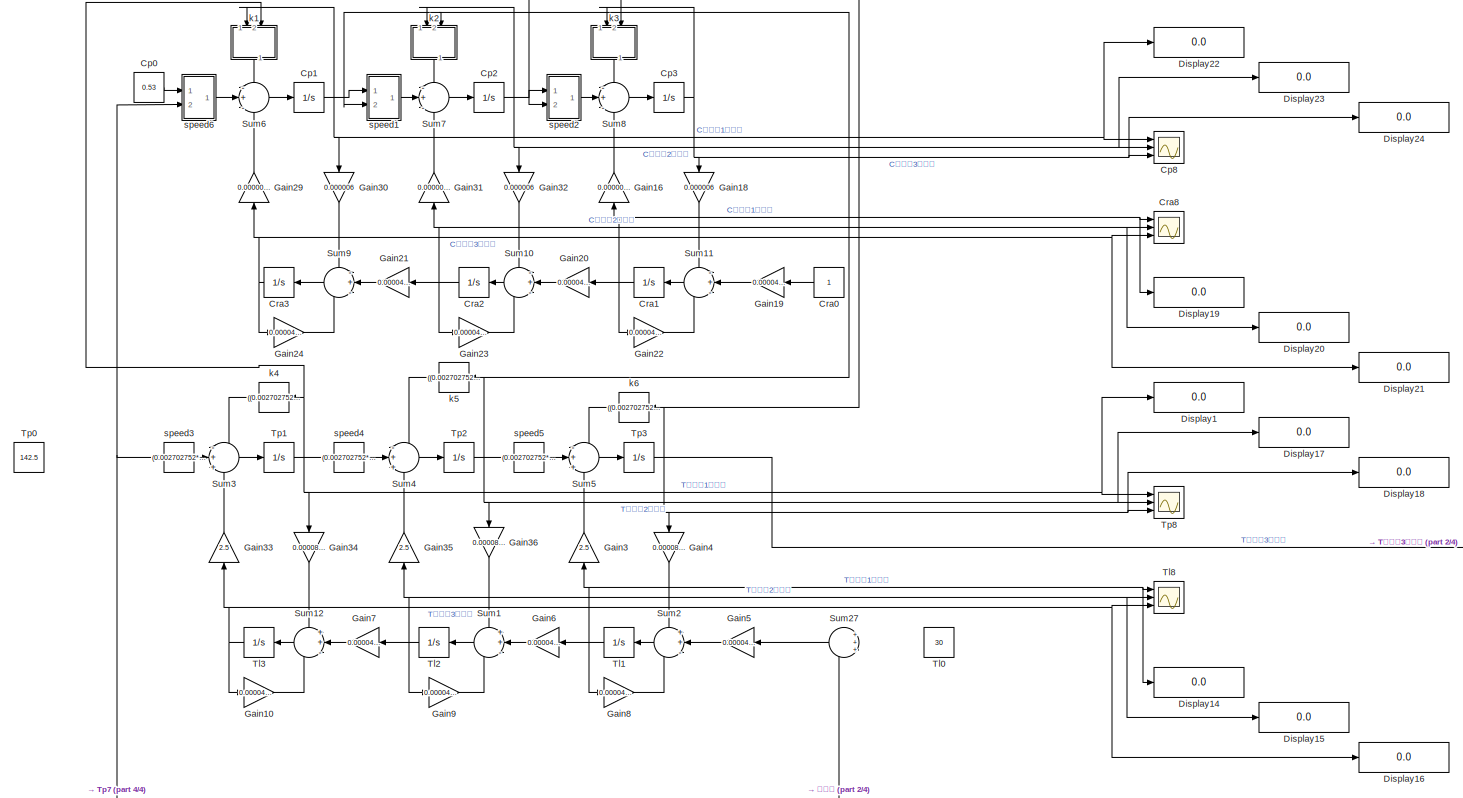
[diagram: root canvas - part 1/4, full width, top band]
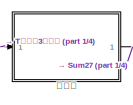
[diagram: root canvas - part 2/4, top right region]
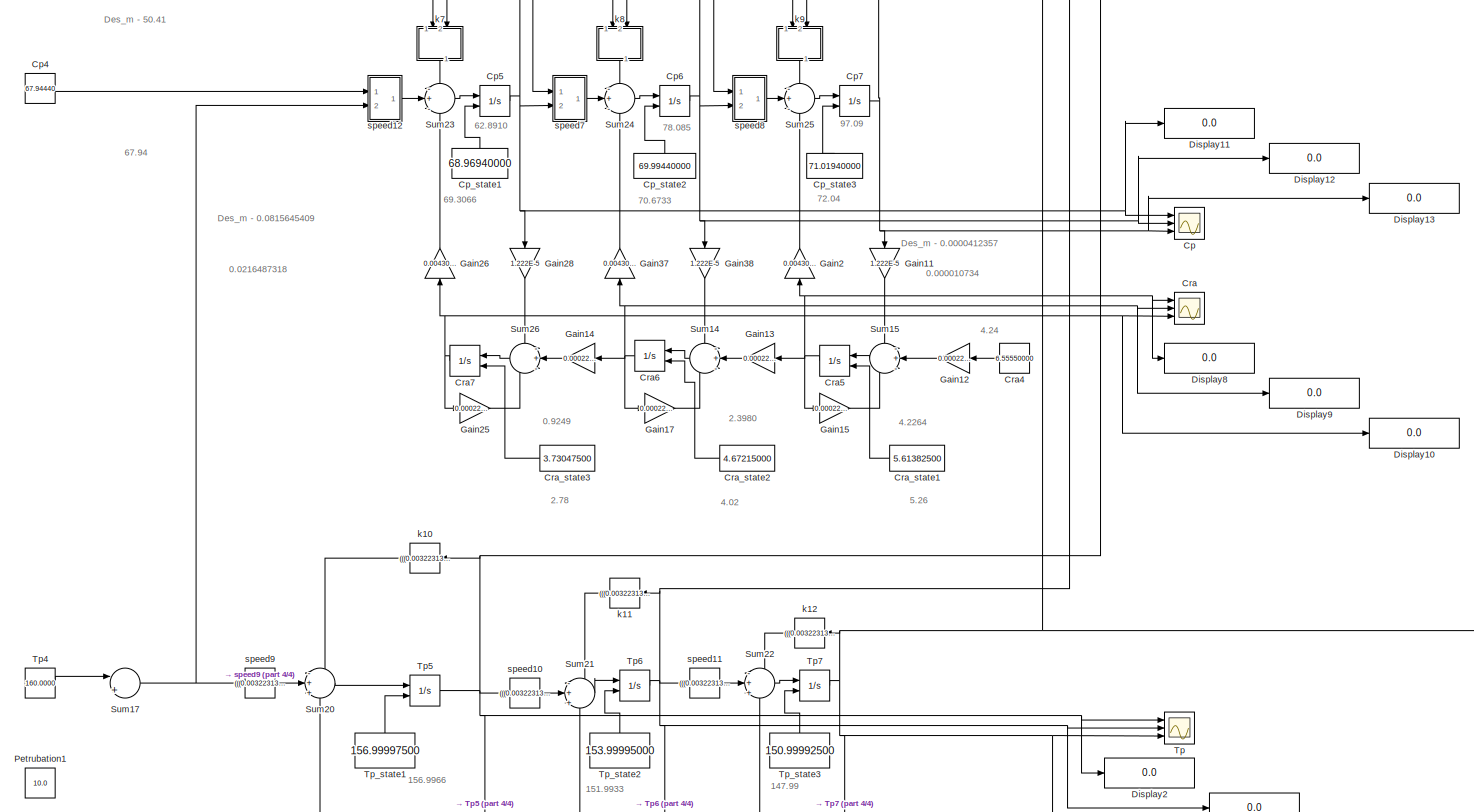
[diagram: root canvas - part 3/4, full width, middle band]
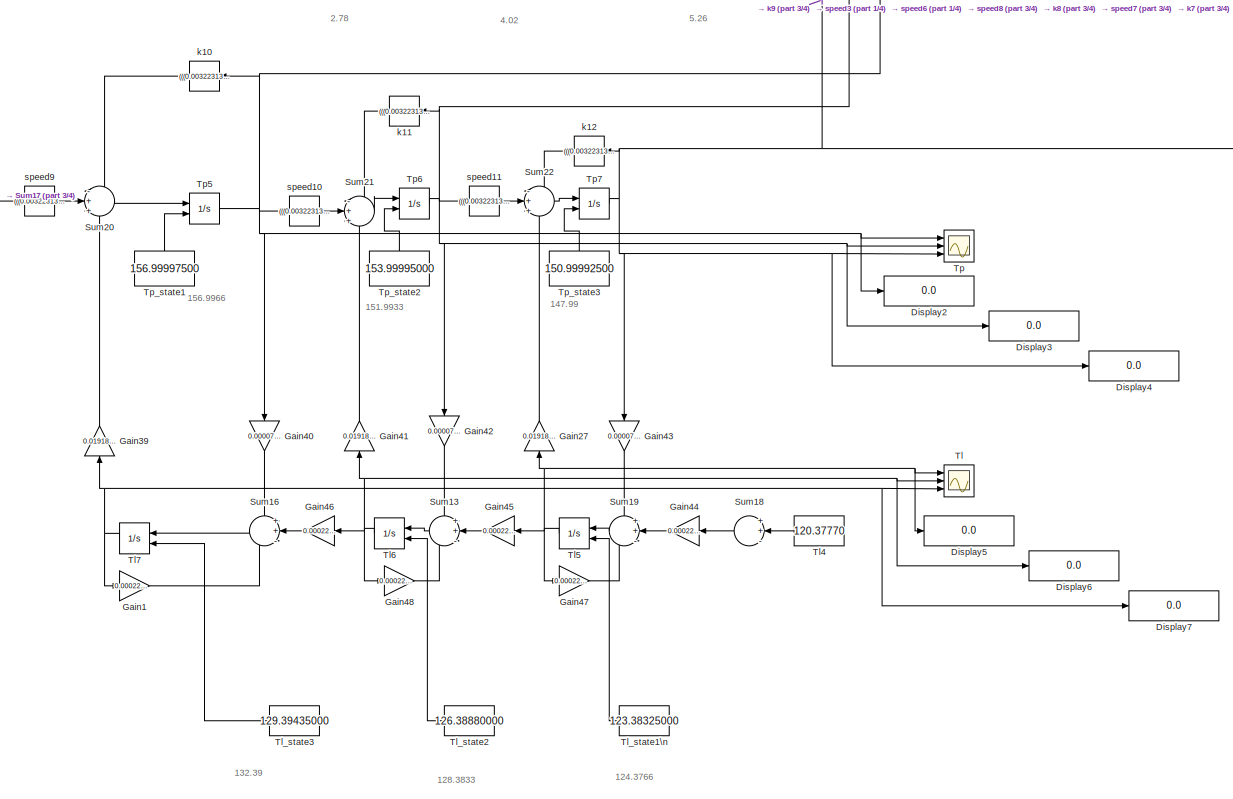
[diagram: root canvas - part 4/4, bottom center region]
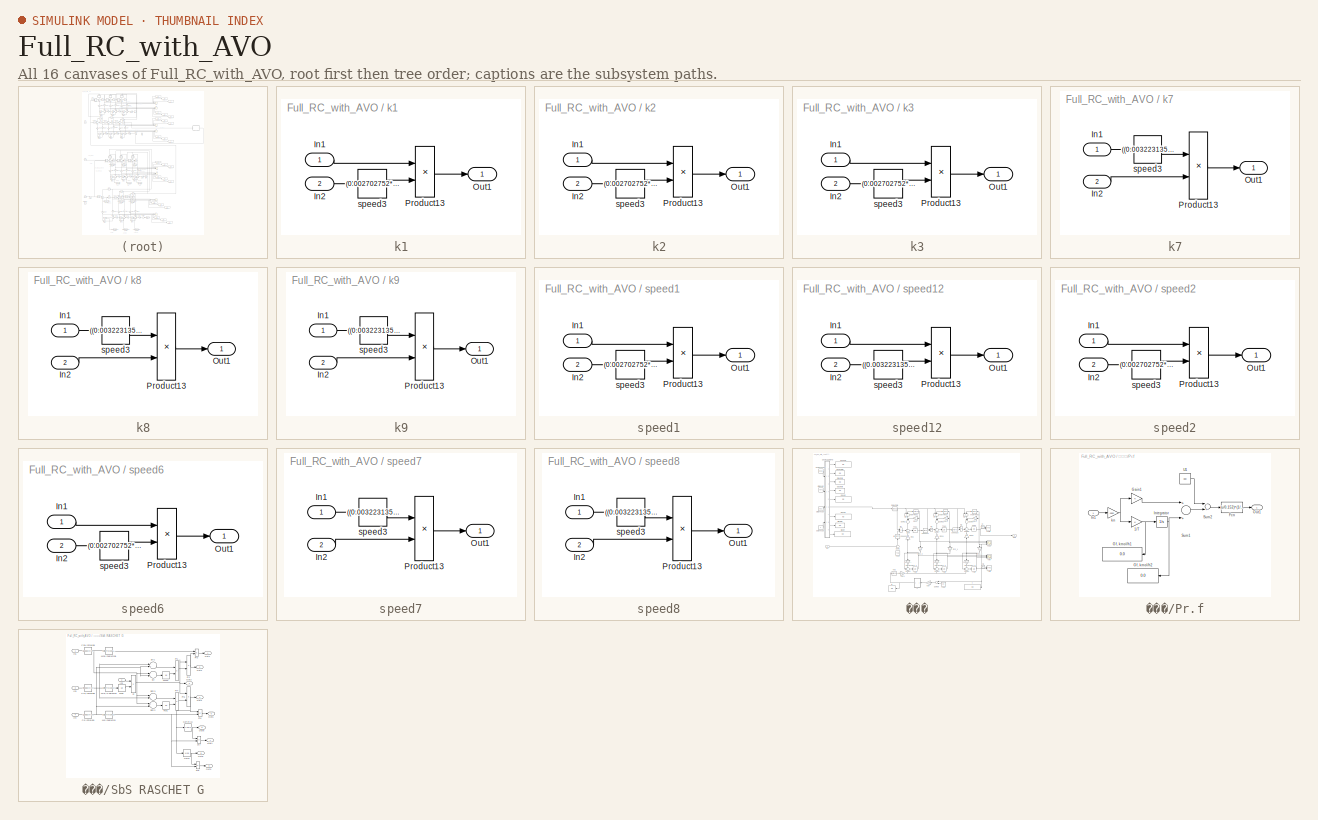
[diagram: thumbnail index - all 16 canvases of the model, root first then tree order]
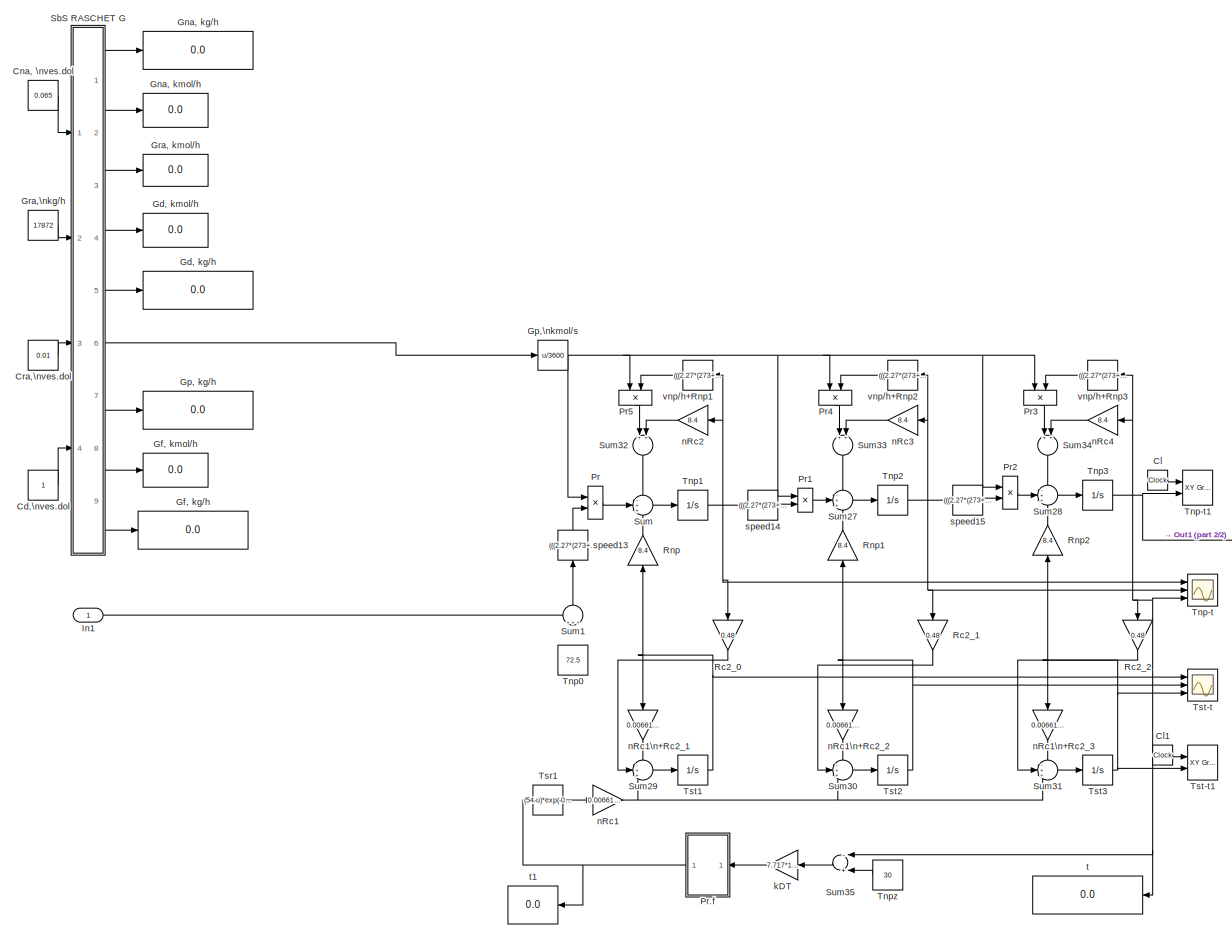
[diagram: ��� - part 1/2, most of the canvas]
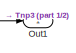
[diagram: ��� - part 2/2, middle right region]
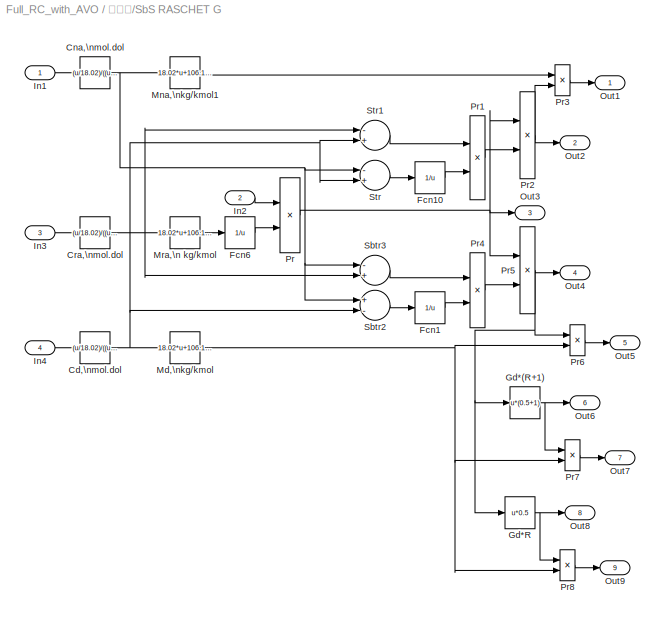
MODEL Full_RC_with_AVO
KIND model
BLOCK [Scope] Cp
  DataFormat = Structure
  Floating = off
  LimitDataPoints = off
  NumInputPorts = 3
  Ports = [3]
  SID = 1
  SampleInput = on
  SampleTime = 0
  SaveName = CV_SM
  SaveToWorkspace = on
  ShowLegends = on
  TickLabels = on
  YMax = 64~100~150
  YMin = 50~75~90
  ZoomMode = xonly
BLOCK [Constant] Cp0
  SID = 2
  Value = 0.53
BLOCK [Integrator] Cp1
  InitialCondition = 0.665
  Ports = [1, 1]
  SID = 3
BLOCK [Integrator] Cp2
  InitialCondition = 0.803
  Ports = [1, 1]
  SID = 4
BLOCK [Integrator] Cp3
  InitialCondition = 0.986
  Ports = [1, 1]
  SID = 5
BLOCK [Constant] Cp4
  SID = 6
  Value = 67.94440
BLOCK [Integrator] Cp5
  InitialCondition = 69.3066
  InitialConditionSource = external
  Ports = [2, 1]
  SID = 7
BLOCK [Integrator] Cp6
  InitialCondition = 70.6733
  InitialConditionSource = external
  Ports = [2, 1]
  SID = 8
BLOCK [Integrator] Cp7
  InitialCondition = 72.04
  InitialConditionSource = external
  Ports = [2, 1]
  SID = 9
BLOCK [Scope] Cp8
  DataFormat = Structure
  Floating = off
  LegendLocations = 0.89666     0.91642    0.081259    0.029554\n0.89666      0.5952    0.081259    0.029554\n0.89666     0.27544    0.081259    0.029554
  LimitDataPoints = off
  NumInputPorts = 3
  Ports = [3]
  SID = 10
  SampleInput = on
  SampleTime = 0
  SaveName = CV_SM1
  SaveToWorkspace = on
  ShowLegends = on
  TickLabels = on
  YMax = 64~100~150
  YMin = 50~75~90
  ZoomMode = xonly
BLOCK [Constant] Cp_state1
  SID = 11
  Value = 68.96940000
BLOCK [Constant] Cp_state2
  SID = 12
  Value = 69.99440000
BLOCK [Constant] Cp_state3
  SID = 13
  Value = 71.01940000
BLOCK [Scope] Cra
  DataFormat = StructureWithTime
  Floating = off
  LimitDataPoints = off
  NumInputPorts = 3
  Ports = [3]
  SID = 14
  SampleInput = on
  SampleTime = 0
  SaveName = CF_SM
  SaveToWorkspace = on
  ShowLegends = on
  TickLabels = on
  YMax = 4.28~2.5~1
  YMin = 4.17~2.4~0.84
  ZoomMode = xonly
BLOCK [Constant] Cra0
  SID = 15
BLOCK [Integrator] Cra1
  InitialCondition = 0.827
  Ports = [1, 1]
  SID = 16
BLOCK [Integrator] Cra2
  InitialCondition = 0.6862
  Ports = [1, 1]
  SID = 17
BLOCK [Integrator] Cra3
  InitialCondition = 0.5696
  Ports = [1, 1]
  SID = 18
BLOCK [Constant] Cra4
  SID = 19
  Value = 6.55550000
BLOCK [Integrator] Cra5
  InitialCondition = 5.26
  InitialConditionSource = external
  Ports = [2, 1]
  SID = 20
BLOCK [Integrator] Cra6
  InitialCondition = 4.02
  InitialConditionSource = external
  Ports = [2, 1]
  SID = 21
BLOCK [Integrator] Cra7
  InitialCondition = 2.78
  InitialConditionSource = external
  Ports = [2, 1]
  SID = 22
BLOCK [Scope] Cra8
  DataFormat = StructureWithTime
  Floating = off
  LegendLocations = 0.89519     0.91642    0.082723    0.029554\n0.89519     0.59666    0.082723    0.029554\n0.89519     0.27544    0.082723    0.029554
  LimitDataPoints = off
  NumInputPorts = 3
  Ports = [3]
  SID = 23
  SampleInput = on
  SampleTime = 0
  SaveName = CF_SM1
  SaveToWorkspace = on
  ShowLegends = on
  TickLabels = on
  YMax = 4.28~2.5~1
  YMin = 4.17~2.4~0.84
  ZoomMode = xonly
BLOCK [Constant] Cra_state1
  SID = 24
  Value = 5.61382500
BLOCK [Constant] Cra_state2
  SID = 25
  Value = 4.67215000
BLOCK [Constant] Cra_state3
  SID = 26
  Value = 3.73047500
BLOCK [Display] Display1
  Decimation = 1
  Ports = [1]
  SID = 27
BLOCK [Display] Display10
  Decimation = 1
  Ports = [1]
  SID = 28
BLOCK [Display] Display11
  Decimation = 1
  Ports = [1]
  SID = 29
BLOCK [Display] Display12
  Decimation = 1
  Ports = [1]
  SID = 30
BLOCK [Display] Display13
  Decimation = 1
  Ports = [1]
  SID = 31
BLOCK [Display] Display14
  Decimation = 1
  Ports = [1]
  SID = 32
BLOCK [Display] Display15
  Decimation = 1
  Ports = [1]
  SID = 33
BLOCK [Display] Display16
  Decimation = 1
  Ports = [1]
  SID = 34
BLOCK [Display] Display17
  Decimation = 1
  Ports = [1]
  SID = 35
BLOCK [Display] Display18
  Decimation = 1
  Ports = [1]
  SID = 36
BLOCK [Display] Display19
  Decimation = 1
  Ports = [1]
  SID = 37
BLOCK [Display] Display2
  Decimation = 1
  Ports = [1]
  SID = 38
BLOCK [Display] Display20
  Decimation = 1
  Ports = [1]
  SID = 39
BLOCK [Display] Display21
  Decimation = 1
  Ports = [1]
  SID = 40
BLOCK [Display] Display22
  Decimation = 1
  Ports = [1]
  SID = 41
BLOCK [Display] Display23
  Decimation = 1
  Ports = [1]
  SID = 42
BLOCK [Display] Display24
  Decimation = 1
  Ports = [1]
  SID = 43
BLOCK [Display] Display3
  Decimation = 1
  Ports = [1]
  SID = 44
BLOCK [Display] Display4
  Decimation = 1
  Ports = [1]
  SID = 45
BLOCK [Display] Display5
  Decimation = 1
  Ports = [1]
  SID = 46
BLOCK [Display] Display6
  Decimation = 1
  Ports = [1]
  SID = 47
BLOCK [Display] Display7
  Decimation = 1
  Ports = [1]
  SID = 48
BLOCK [Display] Display8
  Decimation = 1
  Ports = [1]
  SID = 49
BLOCK [Display] Display9
  Decimation = 1
  Ports = [1]
  SID = 50
BLOCK [Gain] Gain1
  Gain = 0.0002291314/0.5+0.0000777
  OutDataTypeStr = Inherit: Inherit via internal rule
  ParamDataTypeStr = Inherit: Inherit via internal rule
  SID = 51
  SaturateOnIntegerOverflow = off
BLOCK [Gain] Gain10
  Gain = 0.00004/1.17+0.0000855
  OutDataTypeStr = Inherit: Inherit via internal rule
  ParamDataTypeStr = Inherit: Inherit via internal rule
  SID = 52
  SaturateOnIntegerOverflow = off
BLOCK [Gain] Gain11
  Gain = 1.222E-5
  OutDataTypeStr = Inherit: Inherit via internal rule
  ParamDataTypeStr = Inherit: Inherit via internal rule
  SID = 53
  SaturateOnIntegerOverflow = off
BLOCK [Gain] Gain12
  Gain = 0.0002291314/0.5
  OutDataTypeStr = Inherit: Inherit via internal rule
  ParamDataTypeStr = Inherit: Inherit via internal rule
  SID = 54
  SaturateOnIntegerOverflow = off
BLOCK [Gain] Gain13
  Gain = 0.0002291314/0.5
  OutDataTypeStr = Inherit: Inherit via internal rule
  ParamDataTypeStr = Inherit: Inherit via internal rule
  SID = 55
  SaturateOnIntegerOverflow = off
BLOCK [Gain] Gain14
  Gain = 0.0002291314/0.5
  OutDataTypeStr = Inherit: Inherit via internal rule
  ParamDataTypeStr = Inherit: Inherit via internal rule
  SID = 56
  SaturateOnIntegerOverflow = off
BLOCK [Gain] Gain15
  Gain = 0.0002291314/0.5-(1.222E-5)*10^(-9)
  OutDataTypeStr = Inherit: Inherit via internal rule
  ParamDataTypeStr = Inherit: Inherit via internal rule
  SID = 57
  SaturateOnIntegerOverflow = off
BLOCK [Gain] Gain16
  Gain = 0.000000000145
  OutDataTypeStr = Inherit: Inherit via internal rule
  ParamDataTypeStr = Inherit: Inherit via internal rule
  SID = 58
  SaturateOnIntegerOverflow = off
BLOCK [Gain] Gain17
  Gain = 0.0002291314/0.5-(1.222E-5)*10^(-9)
  OutDataTypeStr = Inherit: Inherit via internal rule
  ParamDataTypeStr = Inherit: Inherit via internal rule
  SID = 59
  SaturateOnIntegerOverflow = off
BLOCK [Gain] Gain18
  Gain = 0.000006
  OutDataTypeStr = Inherit: Inherit via internal rule
  ParamDataTypeStr = Inherit: Inherit via internal rule
  SID = 60
  SaturateOnIntegerOverflow = off
BLOCK [Gain] Gain19
  Gain = 0.00004/1.17
  OutDataTypeStr = Inherit: Inherit via internal rule
  ParamDataTypeStr = Inherit: Inherit via internal rule
  SID = 61
  SaturateOnIntegerOverflow = off
BLOCK [Gain] Gain2
  Gain = 0.004302*10^(-9)
  OutDataTypeStr = Inherit: Inherit via internal rule
  ParamDataTypeStr = Inherit: Inherit via internal rule
  SID = 62
  SaturateOnIntegerOverflow = off
BLOCK [Gain] Gain20
  Gain = 0.00004/1.17
  OutDataTypeStr = Inherit: Inherit via internal rule
  ParamDataTypeStr = Inherit: Inherit via internal rule
  SID = 63
  SaturateOnIntegerOverflow = off
BLOCK [Gain] Gain21
  Gain = 0.00004/1.17
  OutDataTypeStr = Inherit: Inherit via internal rule
  ParamDataTypeStr = Inherit: Inherit via internal rule
  SID = 64
  SaturateOnIntegerOverflow = off
BLOCK [Gain] Gain22
  Gain = 0.00004/1.17-(0.000006*0.000000000145)
  OutDataTypeStr = Inherit: Inherit via internal rule
  ParamDataTypeStr = Inherit: Inherit via internal rule
  SID = 65
  SaturateOnIntegerOverflow = off
BLOCK [Gain] Gain23
  Gain = 0.00004/1.17-(0.000006*0.000000000145)
  OutDataTypeStr = Inherit: Inherit via internal rule
  ParamDataTypeStr = Inherit: Inherit via internal rule
  SID = 66
  SaturateOnIntegerOverflow = off
BLOCK [Gain] Gain24
  Gain = 0.00004/1.17-(0.000006*0.000000000145)
  OutDataTypeStr = Inherit: Inherit via internal rule
  ParamDataTypeStr = Inherit: Inherit via internal rule
  SID = 67
  SaturateOnIntegerOverflow = off
BLOCK [Gain] Gain25
  Gain = 0.0002291314/0.5-(1.222E-5)*10^(-9)
  OutDataTypeStr = Inherit: Inherit via internal rule
  ParamDataTypeStr = Inherit: Inherit via internal rule
  SID = 68
  SaturateOnIntegerOverflow = off
BLOCK [Gain] Gain26
  Gain = 0.004302*10^(-9)
  OutDataTypeStr = Inherit: Inherit via internal rule
  ParamDataTypeStr = Inherit: Inherit via internal rule
  SID = 69
  SaturateOnIntegerOverflow = off
BLOCK [Gain] Gain27
  Gain = 0.0191806
  OutDataTypeStr = Inherit: Inherit via internal rule
  ParamDataTypeStr = Inherit: Inherit via internal rule
  SID = 70
  SaturateOnIntegerOverflow = off
BLOCK [Gain] Gain28
  Gain = 1.222E-5
  OutDataTypeStr = Inherit: Inherit via internal rule
  ParamDataTypeStr = Inherit: Inherit via internal rule
  SID = 71
  SaturateOnIntegerOverflow = off
BLOCK [Gain] Gain29
  Gain = 0.000000000145
  OutDataTypeStr = Inherit: Inherit via internal rule
  ParamDataTypeStr = Inherit: Inherit via internal rule
  SID = 72
  SaturateOnIntegerOverflow = off
BLOCK [Gain] Gain3
  Gain = 2.5
  OutDataTypeStr = Inherit: Inherit via internal rule
  ParamDataTypeStr = Inherit: Inherit via internal rule
  SID = 73
  SaturateOnIntegerOverflow = off
BLOCK [Gain] Gain30
  Gain = 0.000006
  OutDataTypeStr = Inherit: Inherit via internal rule
  ParamDataTypeStr = Inherit: Inherit via internal rule
  SID = 74
  SaturateOnIntegerOverflow = off
BLOCK [Gain] Gain31
  Gain = 0.000000000145
  OutDataTypeStr = Inherit: Inherit via internal rule
  ParamDataTypeStr = Inherit: Inherit via internal rule
  SID = 75
  SaturateOnIntegerOverflow = off
BLOCK [Gain] Gain32
  Gain = 0.000006
  OutDataTypeStr = Inherit: Inherit via internal rule
  ParamDataTypeStr = Inherit: Inherit via internal rule
  SID = 76
  SaturateOnIntegerOverflow = off
BLOCK [Gain] Gain33
  Gain = 2.5
  OutDataTypeStr = Inherit: Inherit via internal rule
  ParamDataTypeStr = Inherit: Inherit via internal rule
  SID = 77
  SaturateOnIntegerOverflow = off
BLOCK [Gain] Gain34
  Gain = 0.0000855
  OutDataTypeStr = Inherit: Inherit via internal rule
  ParamDataTypeStr = Inherit: Inherit via internal rule
  SID = 78
  SaturateOnIntegerOverflow = off
BLOCK [Gain] Gain35
  Gain = 2.5
  OutDataTypeStr = Inherit: Inherit via internal rule
  ParamDataTypeStr = Inherit: Inherit via internal rule
  SID = 79
  SaturateOnIntegerOverflow = off
BLOCK [Gain] Gain36
  Gain = 0.0000855
  OutDataTypeStr = Inherit: Inherit via internal rule
  ParamDataTypeStr = Inherit: Inherit via internal rule
  SID = 80
  SaturateOnIntegerOverflow = off
BLOCK [Gain] Gain37
  Gain = 0.004302*10^(-9)
  OutDataTypeStr = Inherit: Inherit via internal rule
  ParamDataTypeStr = Inherit: Inherit via internal rule
  SID = 81
  SaturateOnIntegerOverflow = off
BLOCK [Gain] Gain38
  Gain = 1.222E-5
  OutDataTypeStr = Inherit: Inherit via internal rule
  ParamDataTypeStr = Inherit: Inherit via internal rule
  SID = 82
  SaturateOnIntegerOverflow = off
BLOCK [Gain] Gain39
  Gain = 0.0191806
  OutDataTypeStr = Inherit: Inherit via internal rule
  ParamDataTypeStr = Inherit: Inherit via internal rule
  SID = 83
  SaturateOnIntegerOverflow = off
BLOCK [Gain] Gain4
  Gain = 0.0000855
  OutDataTypeStr = Inherit: Inherit via internal rule
  ParamDataTypeStr = Inherit: Inherit via internal rule
  SID = 84
  SaturateOnIntegerOverflow = off
BLOCK [Gain] Gain40
  Gain = 0.0000777
  OutDataTypeStr = Inherit: Inherit via internal rule
  ParamDataTypeStr = Inherit: Inherit via internal rule
  SID = 85
  SaturateOnIntegerOverflow = off
BLOCK [Gain] Gain41
  Gain = 0.0191806
  OutDataTypeStr = Inherit: Inherit via internal rule
  ParamDataTypeStr = Inherit: Inherit via internal rule
  SID = 86
  SaturateOnIntegerOverflow = off
BLOCK [Gain] Gain42
  Gain = 0.0000777
  OutDataTypeStr = Inherit: Inherit via internal rule
  ParamDataTypeStr = Inherit: Inherit via internal rule
  SID = 87
  SaturateOnIntegerOverflow = off
BLOCK [Gain] Gain43
  Gain = 0.0000777
  OutDataTypeStr = Inherit: Inherit via internal rule
  ParamDataTypeStr = Inherit: Inherit via internal rule
  SID = 88
  SaturateOnIntegerOverflow = off
BLOCK [Gain] Gain44
  Gain = 0.0002291314/0.5
  OutDataTypeStr = Inherit: Inherit via internal rule
  ParamDataTypeStr = Inherit: Inherit via internal rule
  SID = 89
  SaturateOnIntegerOverflow = off
BLOCK [Gain] Gain45
  Gain = 0.0002291314/0.5
  OutDataTypeStr = Inherit: Inherit via internal rule
  ParamDataTypeStr = Inherit: Inherit via internal rule
  SID = 90
  SaturateOnIntegerOverflow = off
BLOCK [Gain] Gain46
  Gain = 0.0002291314/0.5
  OutDataTypeStr = Inherit: Inherit via internal rule
  ParamDataTypeStr = Inherit: Inherit via internal rule
  SID = 91
  SaturateOnIntegerOverflow = off
BLOCK [Gain] Gain47
  Gain = 0.0002291314/0.5+0.0000777
  OutDataTypeStr = Inherit: Inherit via internal rule
  ParamDataTypeStr = Inherit: Inherit via internal rule
  SID = 92
  SaturateOnIntegerOverflow = off
BLOCK [Gain] Gain48
  Gain = 0.0002291314/0.5+0.0000777
  OutDataTypeStr = Inherit: Inherit via internal rule
  ParamDataTypeStr = Inherit: Inherit via internal rule
  SID = 93
  SaturateOnIntegerOverflow = off
BLOCK [Gain] Gain5
  Gain = 0.00004/1.17
  OutDataTypeStr = Inherit: Inherit via internal rule
  ParamDataTypeStr = Inherit: Inherit via internal rule
  SID = 94
  SaturateOnIntegerOverflow = off
BLOCK [Gain] Gain6
  Gain = 0.00004/1.17
  OutDataTypeStr = Inherit: Inherit via internal rule
  ParamDataTypeStr = Inherit: Inherit via internal rule
  SID = 95
  SaturateOnIntegerOverflow = off
BLOCK [Gain] Gain7
  Gain = 0.00004/1.17
  OutDataTypeStr = Inherit: Inherit via internal rule
  ParamDataTypeStr = Inherit: Inherit via internal rule
  SID = 96
  SaturateOnIntegerOverflow = off
BLOCK [Gain] Gain8
  Gain = 0.00004/1.17+0.0000855
  OutDataTypeStr = Inherit: Inherit via internal rule
  ParamDataTypeStr = Inherit: Inherit via internal rule
  SID = 97
  SaturateOnIntegerOverflow = off
BLOCK [Gain] Gain9
  Gain = 0.00004/1.17+0.0000855
  OutDataTypeStr = Inherit: Inherit via internal rule
  ParamDataTypeStr = Inherit: Inherit via internal rule
  SID = 98
  SaturateOnIntegerOverflow = off
BLOCK [Constant] Petrubation1
  SID = 99
  Value = 10.0
BLOCK [Sum] Sum1
  IconShape = round
  InputSameDT = off
  Inputs = ++-
  OutDataTypeStr = Inherit: Inherit via internal rule
  Ports = [3, 1]
  SID = 100
  SaturateOnIntegerOverflow = off
BLOCK [Sum] Sum10
  IconShape = round
  InputSameDT = off
  Inputs = -+-
  OutDataTypeStr = Inherit: Inherit via internal rule
  Ports = [3, 1]
  SID = 101
  SaturateOnIntegerOverflow = off
BLOCK [Sum] Sum11
  IconShape = round
  InputSameDT = off
  Inputs = -+-
  OutDataTypeStr = Inherit: Inherit via internal rule
  Ports = [3, 1]
  SID = 102
  SaturateOnIntegerOverflow = off
BLOCK [Sum] Sum12
  IconShape = round
  InputSameDT = off
  Inputs = ++-
  OutDataTypeStr = Inherit: Inherit via internal rule
  Ports = [3, 1]
  SID = 103
  SaturateOnIntegerOverflow = off
BLOCK [Sum] Sum13
  IconShape = round
  InputSameDT = off
  Inputs = ++-
  OutDataTypeStr = Inherit: Inherit via internal rule
  Ports = [3, 1]
  SID = 104
  SaturateOnIntegerOverflow = off
BLOCK [Sum] Sum14
  IconShape = round
  InputSameDT = off
  Inputs = -+-
  OutDataTypeStr = Inherit: Inherit via internal rule
  Ports = [3, 1]
  SID = 105
  SaturateOnIntegerOverflow = off
BLOCK [Sum] Sum15
  IconShape = round
  InputSameDT = off
  Inputs = -+-
  OutDataTypeStr = Inherit: Inherit via internal rule
  Ports = [3, 1]
  SID = 106
  SaturateOnIntegerOverflow = off
BLOCK [Sum] Sum16
  IconShape = round
  InputSameDT = off
  Inputs = ++-
  OutDataTypeStr = Inherit: Inherit via internal rule
  Ports = [3, 1]
  SID = 107
  SaturateOnIntegerOverflow = off
BLOCK [Sum] Sum17
  IconShape = round
  InputSameDT = off
  Inputs = |++
  OutDataTypeStr = Inherit: Inherit via internal rule
  Ports = [2, 1]
  SID = 108
  SaturateOnIntegerOverflow = off
BLOCK [Sum] Sum18
  IconShape = round
  InputSameDT = off
  Inputs = ++-
  OutDataTypeStr = Inherit: Inherit via internal rule
  Ports = [3, 1]
  SID = 109
  SaturateOnIntegerOverflow = off
BLOCK [Sum] Sum19
  IconShape = round
  InputSameDT = off
  Inputs = ++-
  OutDataTypeStr = Inherit: Inherit via internal rule
  Ports = [3, 1]
  SID = 110
  SaturateOnIntegerOverflow = off
BLOCK [Sum] Sum2
  IconShape = round
  InputSameDT = off
  Inputs = ++-
  OutDataTypeStr = Inherit: Inherit via internal rule
  Ports = [3, 1]
  SID = 111
  SaturateOnIntegerOverflow = off
BLOCK [Sum] Sum20
  IconShape = round
  InputSameDT = off
  Inputs = -++
  OutDataTypeStr = Inherit: Inherit via internal rule
  Ports = [3, 1]
  SID = 112
  SaturateOnIntegerOverflow = off
BLOCK [Sum] Sum21
  IconShape = round
  InputSameDT = off
  Inputs = -++
  OutDataTypeStr = Inherit: Inherit via internal rule
  Ports = [3, 1]
  SID = 113
  SaturateOnIntegerOverflow = off
BLOCK [Sum] Sum22
  IconShape = round
  InputSameDT = off
  Inputs = -++
  OutDataTypeStr = Inherit: Inherit via internal rule
  Ports = [3, 1]
  SID = 114
  SaturateOnIntegerOverflow = off
BLOCK [Sum] Sum23
  IconShape = round
  InputSameDT = off
  Inputs = -+-
  OutDataTypeStr = Inherit: Inherit via internal rule
  Ports = [3, 1]
  SID = 115
  SaturateOnIntegerOverflow = off
BLOCK [Sum] Sum24
  IconShape = round
  InputSameDT = off
  Inputs = -+-
  OutDataTypeStr = Inherit: Inherit via internal rule
  Ports = [3, 1]
  SID = 116
  SaturateOnIntegerOverflow = off
BLOCK [Sum] Sum25
  IconShape = round
  InputSameDT = off
  Inputs = -+-
  OutDataTypeStr = Inherit: Inherit via internal rule
  Ports = [3, 1]
  SID = 117
  SaturateOnIntegerOverflow = off
BLOCK [Sum] Sum26
  IconShape = round
  InputSameDT = off
  Inputs = -+-
  OutDataTypeStr = Inherit: Inherit via internal rule
  Ports = [3, 1]
  SID = 118
  SaturateOnIntegerOverflow = off
BLOCK [Sum] Sum27
  IconShape = round
  InputSameDT = off
  Inputs = +++
  OutDataTypeStr = Inherit: Inherit via internal rule
  Ports = [3, 1]
  SID = 386
  SaturateOnIntegerOverflow = off
BLOCK [Sum] Sum3
  IconShape = round
  InputSameDT = off
  Inputs = -++
  OutDataTypeStr = Inherit: Inherit via internal rule
  Ports = [3, 1]
  SID = 119
  SaturateOnIntegerOverflow = off
BLOCK [Sum] Sum4
  IconShape = round
  InputSameDT = off
  Inputs = -++
  OutDataTypeStr = Inherit: Inherit via internal rule
  Ports = [3, 1]
  SID = 120
  SaturateOnIntegerOverflow = off
BLOCK [Sum] Sum5
  IconShape = round
  InputSameDT = off
  Inputs = -++
  OutDataTypeStr = Inherit: Inherit via internal rule
  Ports = [3, 1]
  SID = 121
  SaturateOnIntegerOverflow = off
BLOCK [Sum] Sum6
  IconShape = round
  InputSameDT = off
  Inputs = -+-
  OutDataTypeStr = Inherit: Inherit via internal rule
  Ports = [3, 1]
  SID = 122
  SaturateOnIntegerOverflow = off
BLOCK [Sum] Sum7
  IconShape = round
  InputSameDT = off
  Inputs = -+-
  OutDataTypeStr = Inherit: Inherit via internal rule
  Ports = [3, 1]
  SID = 123
  SaturateOnIntegerOverflow = off
BLOCK [Sum] Sum8
  IconShape = round
  InputSameDT = off
  Inputs = -+-
  OutDataTypeStr = Inherit: Inherit via internal rule
  Ports = [3, 1]
  SID = 124
  SaturateOnIntegerOverflow = off
BLOCK [Sum] Sum9
  IconShape = round
  InputSameDT = off
  Inputs = -+-
  OutDataTypeStr = Inherit: Inherit via internal rule
  Ports = [3, 1]
  SID = 125
  SaturateOnIntegerOverflow = off
BLOCK [Scope] Tl
  DataFormat = StructureWithTime
  Floating = off
  LimitDataPoints = off
  NumInputPorts = 3
  Ports = [3]
  SID = 126
  SampleInput = on
  SampleTime = 0
  SaveName = TF_SM
  SaveToWorkspace = on
  ShowLegends = on
  TickLabels = on
  YMax = 15.2~21~10.55
  YMin = 13~10~8.800000000000001
  ZoomMode = xonly
BLOCK [Constant] Tl0
  SID = 127
  Value = 30
BLOCK [Integrator] Tl1
  InitialCondition = 58.28
  Ports = [1, 1]
  SID = 128
BLOCK [Integrator] Tl2
  InitialCondition = 86.23
  Ports = [1, 1]
  SID = 129
BLOCK [Integrator] Tl3
  InitialCondition = 111.75
  Ports = [1, 1]
  SID = 130
BLOCK [Constant] Tl4
  SID = 131
  Value = 120.37770
BLOCK [Integrator] Tl5
  InitialCondition = 124.3766
  InitialConditionSource = external
  Ports = [2, 1]
  SID = 132
BLOCK [Integrator] Tl6
  InitialCondition = 128.3833
  InitialConditionSource = external
  Ports = [2, 1]
  SID = 133
BLOCK [Integrator] Tl7
  InitialCondition = 132.39
  InitialConditionSource = external
  Ports = [2, 1]
  SID = 134
BLOCK [Scope] Tl8
  DataFormat = StructureWithTime
  Floating = off
  LimitDataPoints = off
  NumInputPorts = 3
  Ports = [3]
  SID = 135
  SampleInput = on
  SampleTime = 0
  SaveName = TF_SM1
  SaveToWorkspace = on
  ShowLegends = on
  TickLabels = on
  YMax = 15.2~21~10.55
  YMin = 13~10~8.800000000000001
  ZoomMode = xonly
BLOCK [Constant] Tl_state1\n
  SID = 136
  Value = 123.38325000
BLOCK [Constant] Tl_state2
  SID = 137
  Value = 126.38880000
BLOCK [Constant] Tl_state3
  SID = 138
  Value = 129.39435000
BLOCK [Scope] Tp
  DataFormat = StructureWithTime
  Floating = off
  LimitDataPoints = off
  NumInputPorts = 3
  Ports = [3]
  SID = 139
  SampleInput = on
  SampleTime = 0
  SaveName = TV_SM
  SaveToWorkspace = on
  ShowLegends = on
  TickLabels = on
  YMax = 158.5~152~154.5
  YMin = 155.5~145~146
  ZoomMode = xonly
BLOCK [Constant] Tp0
  SID = 140
  Value = 142.5
BLOCK [Integrator] Tp1
  InitialCondition = 121.956
  Ports = [1, 1]
  SID = 141
BLOCK [Integrator] Tp2
  InitialCondition = 97.4
  Ports = [1, 1]
  SID = 142
BLOCK [Integrator] Tp3
  IgnoreLimit = on
  InitialCondition = 69.6
  Ports = [1, 1]
  SID = 143
BLOCK [Constant] Tp4
  SID = 144
  Value = 160.0000
BLOCK [Integrator] Tp5
  InitialCondition = 156.9966
  InitialConditionSource = external
  Ports = [2, 1]
  SID = 145
BLOCK [Integrator] Tp6
  InitialCondition = 151.9933
  InitialConditionSource = external
  Ports = [2, 1]
  SID = 146
BLOCK [Integrator] Tp7
  IgnoreLimit = on
  InitialCondition = 147.99
  InitialConditionSource = external
  Ports = [2, 1]
  SID = 147
BLOCK [Scope] Tp8
  DataFormat = StructureWithTime
  Floating = off
  LegendLocations = 0.89666     0.91642    0.081259    0.029554\n0.89666      0.5952    0.081259    0.029554\n0.89666     0.27544    0.081259    0.029554
  LimitDataPoints = off
  NumInputPorts = 3
  Ports = [3]
  SID = 148
  SampleInput = on
  SampleTime = 0
  SaveName = TV_SM1
  SaveToWorkspace = on
  ShowLegends = on
  TickLabels = on
  YMax = 158.5~152~154.5
  YMin = 155.5~145~146
  ZoomMode = xonly
BLOCK [Constant] Tp_state1
  SID = 149
  Value = 156.99997500
BLOCK [Constant] Tp_state2
  SID = 150
  Value = 153.99995000
BLOCK [Constant] Tp_state3
  SID = 151
  Value = 150.99992500
BLOCK [SubSystem] k1
  Ports = [2, 1]
  RequestExecContextInheritance = off
  SID = 152
BLOCK [Inport] k1/In1
  IconDisplay = Port number
  SID = 153
BLOCK [Inport] k1/In2
  IconDisplay = Port number
  Port = 2
  SID = 154
BLOCK [Outport] k1/Out1
  IconDisplay = Port number
  SID = 157
BLOCK [Product] k1/Product13
  Ports = [2, 1]
  RndMeth = Floor
  SID = 155
BLOCK [Fcn] k1/speed3
  Expr = (0.002702752*(273.15+u))/1.17-0.147
  SID = 156
BLOCK [Fcn] k10
  Expr = (((0.003223135*(273+u))/24.69822264)/0.5+0.0191806)*u
  SID = 158
BLOCK [Fcn] k11
  Expr = (((0.003223135*(273+u))/24.69822264)/0.5+0.0191806)*u
  SID = 159
BLOCK [Fcn] k12
  Expr = (((0.003223135*(273+u))/24.69822264)/0.5+0.0191806)*u
  SID = 160
BLOCK [SubSystem] k2
  Ports = [2, 1]
  RequestExecContextInheritance = off
  SID = 161
BLOCK [Inport] k2/In1
  IconDisplay = Port number
  SID = 162
BLOCK [Inport] k2/In2
  IconDisplay = Port number
  Port = 2
  SID = 163
BLOCK [Outport] k2/Out1
  IconDisplay = Port number
  SID = 166
BLOCK [Product] k2/Product13
  Ports = [2, 1]
  RndMeth = Floor
  SID = 164
BLOCK [Fcn] k2/speed3
  Expr = (0.002702752*(273.15+u))/1.17-0.147
  SID = 165
BLOCK [SubSystem] k3
  Ports = [2, 1]
  RequestExecContextInheritance = off
  SID = 167
BLOCK [Inport] k3/In1
  IconDisplay = Port number
  SID = 168
BLOCK [Inport] k3/In2
  IconDisplay = Port number
  Port = 2
  SID = 169
BLOCK [Outport] k3/Out1
  IconDisplay = Port number
  SID = 172
BLOCK [Product] k3/Product13
  Ports = [2, 1]
  RndMeth = Floor
  SID = 170
BLOCK [Fcn] k3/speed3
  Expr = (0.002702752*(273.15+u))/1.17-0.147
  SID = 171
BLOCK [Fcn] k4
  Expr = ((0.002702752*(273.15+u))/1.17+2.5)*u
  SID = 173
BLOCK [Fcn] k5
  Expr = ((0.002702752*(273.15+u))/1.17+2.5)*u
  SID = 174
BLOCK [Fcn] k6
  Expr = ((0.002702752*(273.15+u))/1.17+2.5)*u
  SID = 175
BLOCK [SubSystem] k7
  Ports = [2, 1]
  RequestExecContextInheritance = off
  SID = 176
BLOCK [Inport] k7/In1
  IconDisplay = Port number
  SID = 177
BLOCK [Inport] k7/In2
  IconDisplay = Port number
  Port = 2
  SID = 178
BLOCK [Outport] k7/Out1
  IconDisplay = Port number
  SID = 181
BLOCK [Product] k7/Product13
  Ports = [2, 1]
  RndMeth = Floor
  SID = 179
BLOCK [Fcn] k7/speed3
  Expr = ((0.003223135*(273+u))/24.69822264)/0.5-0.004302
  SID = 180
BLOCK [SubSystem] k8
  Ports = [2, 1]
  RequestExecContextInheritance = off
  SID = 182
BLOCK [Inport] k8/In1
  IconDisplay = Port number
  SID = 183
BLOCK [Inport] k8/In2
  IconDisplay = Port number
  Port = 2
  SID = 184
BLOCK [Outport] k8/Out1
  IconDisplay = Port number
  SID = 187
BLOCK [Product] k8/Product13
  Ports = [2, 1]
  RndMeth = Floor
  SID = 185
BLOCK [Fcn] k8/speed3
  Expr = ((0.003223135*(273+u))/24.69822264)/0.5-0.004302
  SID = 186
BLOCK [SubSystem] k9
  Ports = [2, 1]
  RequestExecContextInheritance = off
  SID = 188
BLOCK [Inport] k9/In1
  IconDisplay = Port number
  SID = 189
BLOCK [Inport] k9/In2
  IconDisplay = Port number
  Port = 2
  SID = 190
BLOCK [Outport] k9/Out1
  IconDisplay = Port number
  SID = 193
BLOCK [Product] k9/Product13
  Ports = [2, 1]
  RndMeth = Floor
  SID = 191
BLOCK [Fcn] k9/speed3
  Expr = ((0.003223135*(273+u))/24.69822264)/0.5-0.004302
  SID = 192
BLOCK [SubSystem] speed1
  Ports = [2, 1]
  RequestExecContextInheritance = off
  SID = 194
BLOCK [Inport] speed1/In1
  IconDisplay = Port number
  SID = 195
BLOCK [Inport] speed1/In2
  IconDisplay = Port number
  Port = 2
  SID = 196
BLOCK [Outport] speed1/Out1
  IconDisplay = Port number
  SID = 199
BLOCK [Product] speed1/Product13
  Ports = [2, 1]
  RndMeth = Floor
  SID = 197
BLOCK [Fcn] speed1/speed3
  Expr = (0.002702752*(273.15+u))/1.17
  SID = 198
BLOCK [Fcn] speed10
  Expr = (((0.003223135*(273+u))/24.69822264)/0.5)*u
  SID = 200
BLOCK [Fcn] speed11
  Expr = (((0.003223135*(273+u))/24.69822264)/0.5)*u
  SID = 201
BLOCK [SubSystem] speed12
  Ports = [2, 1]
  RequestExecContextInheritance = off
  SID = 202
BLOCK [Inport] speed12/In1
  IconDisplay = Port number
  SID = 203
BLOCK [Inport] speed12/In2
  IconDisplay = Port number
  Port = 2
  SID = 204
BLOCK [Outport] speed12/Out1
  IconDisplay = Port number
  SID = 207
BLOCK [Product] speed12/Product13
  Ports = [2, 1]
  RndMeth = Floor
  SID = 205
BLOCK [Fcn] speed12/speed3
  Expr = ((0.003223135*(273+u))/24.69822264)/0.5
  SID = 206
BLOCK [SubSystem] speed2
  Ports = [2, 1]
  RequestExecContextInheritance = off
  SID = 208
BLOCK [Inport] speed2/In1
  IconDisplay = Port number
  SID = 209
BLOCK [Inport] speed2/In2
  IconDisplay = Port number
  Port = 2
  SID = 210
BLOCK [Outport] speed2/Out1
  IconDisplay = Port number
  SID = 213
BLOCK [Product] speed2/Product13
  Ports = [2, 1]
  RndMeth = Floor
  SID = 211
BLOCK [Fcn] speed2/speed3
  Expr = (0.002702752*(273.15+u))/1.17
  SID = 212
BLOCK [Fcn] speed3
  Expr = (0.002702752*(273.15+u))/1.17*u
  SID = 214
BLOCK [Fcn] speed4
  Expr = (0.002702752*(273.15+u))/1.17*u
  SID = 215
BLOCK [Fcn] speed5
  Expr = (0.002702752*(273.15+u))/1.17*u
  SID = 216
BLOCK [SubSystem] speed6
  Ports = [2, 1]
  RequestExecContextInheritance = off
  SID = 217
BLOCK [Inport] speed6/In1
  IconDisplay = Port number
  SID = 218
BLOCK [Inport] speed6/In2
  IconDisplay = Port number
  Port = 2
  SID = 219
BLOCK [Outport] speed6/Out1
  IconDisplay = Port number
  SID = 222
BLOCK [Product] speed6/Product13
  Ports = [2, 1]
  RndMeth = Floor
  SID = 220
BLOCK [Fcn] speed6/speed3
  Expr = (0.002702752*(273.15+u))/1.17
  SID = 221
BLOCK [SubSystem] speed7
  Ports = [2, 1]
  RequestExecContextInheritance = off
  SID = 223
BLOCK [Inport] speed7/In1
  IconDisplay = Port number
  SID = 224
BLOCK [Inport] speed7/In2
  IconDisplay = Port number
  Port = 2
  SID = 225
BLOCK [Outport] speed7/Out1
  IconDisplay = Port number
  SID = 228
BLOCK [Product] speed7/Product13
  Ports = [2, 1]
  RndMeth = Floor
  SID = 226
BLOCK [Fcn] speed7/speed3
  Expr = ((0.003223135*(273+u))/24.69822264)/0.5
  SID = 227
BLOCK [SubSystem] speed8
  Ports = [2, 1]
  RequestExecContextInheritance = off
  SID = 229
BLOCK [Inport] speed8/In1
  IconDisplay = Port number
  SID = 230
BLOCK [Inport] speed8/In2
  IconDisplay = Port number
  Port = 2
  SID = 231
BLOCK [Outport] speed8/Out1
  IconDisplay = Port number
  SID = 234
BLOCK [Product] speed8/Product13
  Ports = [2, 1]
  RndMeth = Floor
  SID = 232
BLOCK [Fcn] speed8/speed3
  Expr = ((0.003223135*(273+u))/24.69822264)/0.5
  SID = 233
BLOCK [Fcn] speed9
  Expr = (((0.003223135*(273+u))/24.69822264)/0.5)*u
  SID = 235
BLOCK [SubSystem] ÀÂÎ
  Ports = [1, 1]
  RequestExecContextInheritance = off
  SID = 383
BLOCK [Constant] ÀÂÎ/Cd,\nves.dol
  SID = 263
BLOCK [Clock] ÀÂÎ/Cl
  SID = 264
BLOCK [Clock] ÀÂÎ/Cl1
  SID = 265
BLOCK [Constant] ÀÂÎ/Cna, \nves.dol
  SID = 266
  Value = 0.065
BLOCK [Constant] ÀÂÎ/Cra,\nves.dol
  SID = 267
  Value = 0.01
BLOCK [Display] ÀÂÎ/Gd, kg//h
  Decimation = 1
  Format = long
  Ports = [1]
  SID = 268
BLOCK [Display] ÀÂÎ/Gd, kmol//h
  Decimation = 1
  Ports = [1]
  SID = 269
BLOCK [Display] ÀÂÎ/Gf, kg//h
  Decimation = 1
  Format = long
  Ports = [1]
  SID = 270
BLOCK [Display] ÀÂÎ/Gf, kmol//h
  Decimation = 1
  Ports = [1]
  SID = 271
BLOCK [Display] ÀÂÎ/Gna, kg//h
  Decimation = 1
  Format = long
  Ports = [1]
  SID = 272
BLOCK [Display] ÀÂÎ/Gna, kmol//h
  Decimation = 1
  Ports = [1]
  SID = 273
BLOCK [Display] ÀÂÎ/Gp, kg//h
  Decimation = 1
  Format = long
  Ports = [1]
  SID = 275
BLOCK [Fcn] ÀÂÎ/Gp,\nkmol//s
  Expr = u/3600
  SID = 274
BLOCK [Display] ÀÂÎ/Gra, kmol//h
  Decimation = 1
  Ports = [1]
  SID = 277
BLOCK [Constant] ÀÂÎ/Gra,\nkg//h
  SID = 276
  Value = 17872
BLOCK [Inport] ÀÂÎ/In1
  IconDisplay = Port number
  SID = 384
BLOCK [Outport] ÀÂÎ/Out1
  IconDisplay = Port number
  SID = 385
BLOCK [Product] ÀÂÎ/Pr
  InputSameDT = off
  OutDataTypeStr = Inherit: Inherit via internal rule
  Ports = [2, 1]
  SID = 278
  SaturateOnIntegerOverflow = off
BLOCK [SubSystem] ÀÂÎ/Pr.f
  Ports = [1, 1]
  RequestExecContextInheritance = off
  SID = 279
BLOCK [Gain] ÀÂÎ/Pr.f/1//T
  OutDataTypeStr = Inherit: Inherit via internal rule
  ParamDataTypeStr = Inherit: Inherit via internal rule
  SID = 281
  SaturateOnIntegerOverflow = off
BLOCK [Fcn] ÀÂÎ/Pr.f/Fcn
  Expr = (u/0.152)^(1/2)
  SID = 282
BLOCK [Gain] ÀÂÎ/Pr.f/Gain1
  OutDataTypeStr = Inherit: Inherit via internal rule
  ParamDataTypeStr = Inherit: Inherit via internal rule
  SID = 283
  SaturateOnIntegerOverflow = off
BLOCK [Display] ÀÂÎ/Pr.f/Gf, kmol//h1
  Decimation = 1
  Ports = [1]
  SID = 284
BLOCK [Display] ÀÂÎ/Pr.f/Gf, kmol//h2
  Decimation = 1
  Ports = [1]
  SID = 285
BLOCK [Inport] ÀÂÎ/Pr.f/In1
  IconDisplay = Port number
  SID = 280
BLOCK [Integrator] ÀÂÎ/Pr.f/Integrator
  InitialCondition = 403.6
  Ports = [1, 1]
  SID = 286
BLOCK [Outport] ÀÂÎ/Pr.f/Out1
  IconDisplay = Port number
  SID = 291
BLOCK [Sum] ÀÂÎ/Pr.f/Sum1
  InputSameDT = off
  OutDataTypeStr = Inherit: Inherit via internal rule
  Ports = [2, 1]
  SID = 287
  SaturateOnIntegerOverflow = off
BLOCK [Sum] ÀÂÎ/Pr.f/Sum2
  InputSameDT = off
  Inputs = -+
  OutDataTypeStr = Inherit: Inherit via internal rule
  Ports = [2, 1]
  SID = 288
  SaturateOnIntegerOverflow = off
BLOCK [Constant] ÀÂÎ/Pr.f/U1
  SID = 289
  Value = 380
BLOCK [Gain] ÀÂÎ/Pr.f/kn
  Gain = 4300
  OutDataTypeStr = Inherit: Inherit via internal rule
  ParamDataTypeStr = Inherit: Inherit via internal rule
  SID = 290
  SaturateOnIntegerOverflow = off
BLOCK [Product] ÀÂÎ/Pr1
  InputSameDT = off
  OutDataTypeStr = Inherit: Inherit via internal rule
  Ports = [2, 1]
  SID = 292
  SaturateOnIntegerOverflow = off
BLOCK [Product] ÀÂÎ/Pr2
  InputSameDT = off
  OutDataTypeStr = Inherit: Inherit via internal rule
  Ports = [2, 1]
  SID = 293
  SaturateOnIntegerOverflow = off
BLOCK [Product] ÀÂÎ/Pr3
  InputSameDT = off
  OutDataTypeStr = Inherit: Inherit via internal rule
  Ports = [2, 1]
  SID = 294
  SaturateOnIntegerOverflow = off
BLOCK [Product] ÀÂÎ/Pr4
  InputSameDT = off
  OutDataTypeStr = Inherit: Inherit via internal rule
  Ports = [2, 1]
  SID = 295
  SaturateOnIntegerOverflow = off
BLOCK [Product] ÀÂÎ/Pr5
  InputSameDT = off
  OutDataTypeStr = Inherit: Inherit via internal rule
  Ports = [2, 1]
  SID = 296
  SaturateOnIntegerOverflow = off
BLOCK [Gain] ÀÂÎ/Rc2_0
  Gain = 0.48
  OutDataTypeStr = Inherit: Inherit via internal rule
  ParamDataTypeStr = Inherit: Inherit via internal rule
  SID = 297
  SaturateOnIntegerOverflow = off
BLOCK [Gain] ÀÂÎ/Rc2_1
  Gain = 0.48
  OutDataTypeStr = Inherit: Inherit via internal rule
  ParamDataTypeStr = Inherit: Inherit via internal rule
  SID = 298
  SaturateOnIntegerOverflow = off
BLOCK [Gain] ÀÂÎ/Rc2_2
  Gain = 0.48
  OutDataTypeStr = Inherit: Inherit via internal rule
  ParamDataTypeStr = Inherit: Inherit via internal rule
  SID = 299
  SaturateOnIntegerOverflow = off
BLOCK [Gain] ÀÂÎ/Rnp
  Gain = 8.4
  OutDataTypeStr = Inherit: Inherit via internal rule
  ParamDataTypeStr = Inherit: Inherit via internal rule
  SID = 300
  SaturateOnIntegerOverflow = off
BLOCK [Gain] ÀÂÎ/Rnp1
  Gain = 8.4
  OutDataTypeStr = Inherit: Inherit via internal rule
  ParamDataTypeStr = Inherit: Inherit via internal rule
  SID = 301
  SaturateOnIntegerOverflow = off
BLOCK [Gain] ÀÂÎ/Rnp2
  Gain = 8.4
  OutDataTypeStr = Inherit: Inherit via internal rule
  ParamDataTypeStr = Inherit: Inherit via internal rule
  SID = 302
  SaturateOnIntegerOverflow = off
BLOCK [SubSystem] ÀÂÎ/SbS RASCHET G
  Ports = [4, 9]
  RequestExecContextInheritance = off
  SID = 303
BLOCK [Fcn] ÀÂÎ/SbS RASCHET G/Cd,\nmol.dol
  Expr = (u/18.02)/((u/18.02)+((1-u)/106.12))
  SID = 308
BLOCK [Fcn] ÀÂÎ/SbS RASCHET G/Cna,\nmol.dol
  Expr = (u/18.02)/((u/18.02)+((1-u)/106.12))
  SID = 309
BLOCK [Fcn] ÀÂÎ/SbS RASCHET G/Cra,\nmol.dol
  Expr = (u/18.02)/((u/18.02)+((1-u)/106.12))
  SID = 310
BLOCK [Fcn] ÀÂÎ/SbS RASCHET G/Fcn1
  Expr = 1/u
  SID = 311
BLOCK [Fcn] ÀÂÎ/SbS RASCHET G/Fcn10
  Expr = 1/u
  SID = 312
BLOCK [Fcn] ÀÂÎ/SbS RASCHET G/Fcn6
  Expr = 1/u
  SID = 313
BLOCK [Fcn] ÀÂÎ/SbS RASCHET G/Gd*(R+1)
  Expr = u*(0.5+1)
  SID = 314
BLOCK [Fcn] ÀÂÎ/SbS RASCHET G/Gd*R
  Expr = u*0.5
  SID = 315
BLOCK [Inport] ÀÂÎ/SbS RASCHET G/In1
  IconDisplay = Port number
  SID = 304
BLOCK [Inport] ÀÂÎ/SbS RASCHET G/In2
  IconDisplay = Port number
  Port = 2
  SID = 305
BLOCK [Inport] ÀÂÎ/SbS RASCHET G/In3
  IconDisplay = Port number
  Port = 3
  SID = 306
BLOCK [Inport] ÀÂÎ/SbS RASCHET G/In4
  IconDisplay = Port number
  Port = 4
  SID = 307
BLOCK [Fcn] ÀÂÎ/SbS RASCHET G/Md,\nkg//kmol
  Expr = 18.02*u+106.12*(1-u)
  SID = 316
BLOCK [Fcn] ÀÂÎ/SbS RASCHET G/Mna,\nkg//kmol1
  Expr = 18.02*u+106.12*(1-u)
  SID = 317
BLOCK [Fcn] ÀÂÎ/SbS RASCHET G/Mra,\n kg//kmol
  Expr = 18.02*u+106.12*(1-u)
  SID = 318
BLOCK [Outport] ÀÂÎ/SbS RASCHET G/Out1
  IconDisplay = Port number
  SID = 332
BLOCK [Outport] ÀÂÎ/SbS RASCHET G/Out2
  IconDisplay = Port number
  Port = 2
  SID = 333
BLOCK [Outport] ÀÂÎ/SbS RASCHET G/Out3
  IconDisplay = Port number
  Port = 3
  SID = 334
BLOCK [Outport] ÀÂÎ/SbS RASCHET G/Out4
  IconDisplay = Port number
  Port = 4
  SID = 335
BLOCK [Outport] ÀÂÎ/SbS RASCHET G/Out5
  IconDisplay = Port number
  Port = 5
  SID = 336
BLOCK [Outport] ÀÂÎ/SbS RASCHET G/Out6
  IconDisplay = Port number
  Port = 6
  SID = 337
BLOCK [Outport] ÀÂÎ/SbS RASCHET G/Out7
  IconDisplay = Port number
  Port = 7
  SID = 338
BLOCK [Outport] ÀÂÎ/SbS RASCHET G/Out8
  IconDisplay = Port number
  Port = 8
  SID = 339
BLOCK [Outport] ÀÂÎ/SbS RASCHET G/Out9
  IconDisplay = Port number
  Port = 9
  SID = 340
BLOCK [Product] ÀÂÎ/SbS RASCHET G/Pr
  InputSameDT = off
  OutDataTypeStr = Inherit: Inherit via internal rule
  Ports = [2, 1]
  SID = 319
  SaturateOnIntegerOverflow = off
BLOCK [Product] ÀÂÎ/SbS RASCHET G/Pr1
  InputSameDT = off
  OutDataTypeStr = Inherit: Inherit via internal rule
  Ports = [2, 1]
  SID = 320
  SaturateOnIntegerOverflow = off
BLOCK [Product] ÀÂÎ/SbS RASCHET G/Pr2
  InputSameDT = off
  OutDataTypeStr = Inherit: Inherit via internal rule
  Ports = [2, 1]
  SID = 321
  SaturateOnIntegerOverflow = off
BLOCK [Product] ÀÂÎ/SbS RASCHET G/Pr3
  InputSameDT = off
  OutDataTypeStr = Inherit: Inherit via internal rule
  Ports = [2, 1]
  SID = 322
  SaturateOnIntegerOverflow = off
BLOCK [Product] ÀÂÎ/SbS RASCHET G/Pr4
  InputSameDT = off
  OutDataTypeStr = Inherit: Inherit via internal rule
  Ports = [2, 1]
  SID = 323
  SaturateOnIntegerOverflow = off
BLOCK [Product] ÀÂÎ/SbS RASCHET G/Pr5
  InputSameDT = off
  OutDataTypeStr = Inherit: Inherit via internal rule
  Ports = [2, 1]
  SID = 324
  SaturateOnIntegerOverflow = off
BLOCK [Product] ÀÂÎ/SbS RASCHET G/Pr6
  InputSameDT = off
  OutDataTypeStr = Inherit: Inherit via internal rule
  Ports = [2, 1]
  SID = 325
  SaturateOnIntegerOverflow = off
BLOCK [Product] ÀÂÎ/SbS RASCHET G/Pr7
  InputSameDT = off
  OutDataTypeStr = Inherit: Inherit via internal rule
  Ports = [2, 1]
  SID = 326
  SaturateOnIntegerOverflow = off
BLOCK [Product] ÀÂÎ/SbS RASCHET G/Pr8
  InputSameDT = off
  OutDataTypeStr = Inherit: Inherit via internal rule
  Ports = [2, 1]
  SID = 327
  SaturateOnIntegerOverflow = off
BLOCK [Sum] ÀÂÎ/SbS RASCHET G/Sbtr2
  InputSameDT = off
  Inputs = +-
  OutDataTypeStr = Inherit: Inherit via internal rule
  Ports = [2, 1]
  SID = 328
  SaturateOnIntegerOverflow = off
BLOCK [Sum] ÀÂÎ/SbS RASCHET G/Sbtr3
  InputSameDT = off
  Inputs = -+
  OutDataTypeStr = Inherit: Inherit via internal rule
  Ports = [2, 1]
  SID = 329
  SaturateOnIntegerOverflow = off
BLOCK [Sum] ÀÂÎ/SbS RASCHET G/Str
  InputSameDT = off
  Inputs = -+
  OutDataTypeStr = Inherit: Inherit via internal rule
  Ports = [2, 1]
  SID = 330
  SaturateOnIntegerOverflow = off
BLOCK [Sum] ÀÂÎ/SbS RASCHET G/Str1
  InputSameDT = off
  Inputs = -+
  OutDataTypeStr = Inherit: Inherit via internal rule
  Ports = [2, 1]
  SID = 331
  SaturateOnIntegerOverflow = off
BLOCK [Sum] ÀÂÎ/Sum
  IconShape = round
  InputSameDT = off
  Inputs = -++
  OutDataTypeStr = Inherit: Inherit via internal rule
  Ports = [3, 1]
  SID = 341
  SaturateOnIntegerOverflow = off
BLOCK [Sum] ÀÂÎ/Sum1
  IconShape = round
  InputSameDT = off
  Inputs = +++
  OutDataTypeStr = Inherit: Inherit via internal rule
  Ports = [3, 1]
  SID = 387
  SaturateOnIntegerOverflow = off
BLOCK [Sum] ÀÂÎ/Sum27
  IconShape = round
  InputSameDT = off
  Inputs = -++
  OutDataTypeStr = Inherit: Inherit via internal rule
  Ports = [3, 1]
  SID = 342
  SaturateOnIntegerOverflow = off
BLOCK [Sum] ÀÂÎ/Sum28
  IconShape = round
  InputSameDT = off
  Inputs = -++
  OutDataTypeStr = Inherit: Inherit via internal rule
  Ports = [3, 1]
  SID = 343
  SaturateOnIntegerOverflow = off
BLOCK [Sum] ÀÂÎ/Sum29
  IconShape = round
  InputSameDT = off
  Inputs = -++
  OutDataTypeStr = Inherit: Inherit via internal rule
  Ports = [3, 1]
  SID = 344
  SaturateOnIntegerOverflow = off
BLOCK [Sum] ÀÂÎ/Sum30
  IconShape = round
  InputSameDT = off
  Inputs = -++
  OutDataTypeStr = Inherit: Inherit via internal rule
  Ports = [3, 1]
  SID = 345
  SaturateOnIntegerOverflow = off
BLOCK [Sum] ÀÂÎ/Sum31
  IconShape = round
  InputSameDT = off
  Inputs = -++
  OutDataTypeStr = Inherit: Inherit via internal rule
  Ports = [3, 1]
  SID = 346
  SaturateOnIntegerOverflow = off
BLOCK [Sum] ÀÂÎ/Sum32
  InputSameDT = off
  OutDataTypeStr = Inherit: Inherit via internal rule
  Ports = [2, 1]
  SID = 347
  SaturateOnIntegerOverflow = off
BLOCK [Sum] ÀÂÎ/Sum33
  InputSameDT = off
  OutDataTypeStr = Inherit: Inherit via internal rule
  Ports = [2, 1]
  SID = 348
  SaturateOnIntegerOverflow = off
BLOCK [Sum] ÀÂÎ/Sum34
  InputSameDT = off
  OutDataTypeStr = Inherit: Inherit via internal rule
  Ports = [2, 1]
  SID = 349
  SaturateOnIntegerOverflow = off
BLOCK [Sum] ÀÂÎ/Sum35
  InputSameDT = off
  Inputs = -+
  OutDataTypeStr = Inherit: Inherit via internal rule
  Ports = [2, 1]
  SID = 350
  SaturateOnIntegerOverflow = off
BLOCK [Scope] ÀÂÎ/Tnp-t
  DataFormat = StructureWithTime
  Floating = off
  NumInputPorts = 3
  Ports = [3]
  SID = 351
  SampleTime = 0
  ShowLegends = off
  YMax = 75.1278~74.1435~73.1721
  YMin = 67.9728~67.0823~66.2033
BLOCK [Reference] ÀÂÎ/Tnp-t1  REF=simulink/Sinks/XY Graph
  Ports = [2]
  SID = 352
  SourceBlock = simulink/Sinks/XY Graph
  SourceType = XY scope.
  st = -1
  xmax = 1000
  xmin = 0
  ymax = 50
  ymin = 10
BLOCK [Constant] ÀÂÎ/Tnp0
  SID = 353
  Value = 72.5
BLOCK [Integrator] ÀÂÎ/Tnp1
  InitialCondition = 55.042986606641151
  Ports = [1, 1]
  SID = 354
BLOCK [Integrator] ÀÂÎ/Tnp2
  InitialCondition = 42.494060413287038
  Ports = [1, 1]
  SID = 355
BLOCK [Integrator] ÀÂÎ/Tnp3
  InitialCondition = 33.818616670435347
  Ports = [1, 1]
  SID = 356
BLOCK [Constant] ÀÂÎ/Tnpz
  SID = 357
  Value = 30
BLOCK [Fcn] ÀÂÎ/Tsr1
  Expr = (54-u)*exp(-0.06*101.25)+u
  SID = 358
BLOCK [Scope] ÀÂÎ/Tst-t
  DataFormat = StructureWithTime
  Floating = off
  NumInputPorts = 3
  Ports = [3]
  SID = 359
  SampleTime = 0
  SaveName = ScopeData1
  ShowLegends = off
  YMax = 354.532~633.998~913.686
  YMin = 320.767~573.618~826.668
BLOCK [Reference] ÀÂÎ/Tst-t1  REF=simulink/Sinks/XY Graph
  Ports = [2]
  SID = 360
  SourceBlock = simulink/Sinks/XY Graph
  SourceType = XY scope.
  st = -1
  xmax = 1000
  xmin = 0
  ymax = 50
  ymin = 10
BLOCK [Integrator] ÀÂÎ/Tst1
  InitialCondition = 30.749212884999000
  Ports = [1, 1]
  SID = 361
BLOCK [Integrator] ÀÂÎ/Tst2
  InitialCondition = 26.338794670104530
  Ports = [1, 1]
  SID = 362
BLOCK [Integrator] ÀÂÎ/Tst3
  InitialCondition = 23.289742144317184
  Ports = [1, 1]
  SID = 363
BLOCK [Gain] ÀÂÎ/kDT
  Gain = 7.717*10^(-5)
  OutDataTypeStr = Inherit: Inherit via internal rule
  ParamDataTypeStr = Inherit: Inherit via internal rule
  SID = 364
  SaturateOnIntegerOverflow = off
BLOCK [Gain] ÀÂÎ/nRc1
  Gain = 0.00661*134
  OutDataTypeStr = Inherit: Inherit via internal rule
  ParamDataTypeStr = Inherit: Inherit via internal rule
  SID = 365
  SaturateOnIntegerOverflow = off
BLOCK [Gain] ÀÂÎ/nRc1\n+Rc2_1
  Gain = 0.00661*134+0.48
  OutDataTypeStr = Inherit: Inherit via internal rule
  ParamDataTypeStr = Inherit: Inherit via internal rule
  SID = 366
  SaturateOnIntegerOverflow = off
BLOCK [Gain] ÀÂÎ/nRc1\n+Rc2_2
  Gain = 0.00661*134+0.48
  OutDataTypeStr = Inherit: Inherit via internal rule
  ParamDataTypeStr = Inherit: Inherit via internal rule
  SID = 367
  SaturateOnIntegerOverflow = off
BLOCK [Gain] ÀÂÎ/nRc1\n+Rc2_3
  Gain = 0.00661*134+0.48
  OutDataTypeStr = Inherit: Inherit via internal rule
  ParamDataTypeStr = Inherit: Inherit via internal rule
  SID = 368
  SaturateOnIntegerOverflow = off
BLOCK [Gain] ÀÂÎ/nRc2
  Gain = 8.4
  OutDataTypeStr = Inherit: Inherit via internal rule
  ParamDataTypeStr = Inherit: Inherit via internal rule
  SID = 369
  SaturateOnIntegerOverflow = off
BLOCK [Gain] ÀÂÎ/nRc3
  Gain = 8.4
  OutDataTypeStr = Inherit: Inherit via internal rule
  ParamDataTypeStr = Inherit: Inherit via internal rule
  SID = 370
  SaturateOnIntegerOverflow = off
BLOCK [Gain] ÀÂÎ/nRc4
  Gain = 8.4
  OutDataTypeStr = Inherit: Inherit via internal rule
  ParamDataTypeStr = Inherit: Inherit via internal rule
  SID = 371
  SaturateOnIntegerOverflow = off
BLOCK [Fcn] ÀÂÎ/speed13
  Expr = (((2.27*(273+u))/1.4184)/1.333)*u
  SID = 372
BLOCK [Fcn] ÀÂÎ/speed14
  Expr = (((2.27*(273+u))/1.4184)/1.333)*u
  SID = 373
BLOCK [Fcn] ÀÂÎ/speed15
  Expr = (((2.27*(273+u))/1.4184)/1.333)*u
  SID = 374
BLOCK [Display] ÀÂÎ/t
  Decimation = 1
  Ports = [1]
  SID = 375
BLOCK [Display] ÀÂÎ/t1
  Decimation = 1
  Ports = [1]
  SID = 376
BLOCK [Fcn] ÀÂÎ/vnp//h+Rnp1
  Expr = (((2.27*(273+u))/1.4184)/1.333)*u
  SID = 377
BLOCK [Fcn] ÀÂÎ/vnp//h+Rnp2
  Expr = (((2.27*(273+u))/1.4184)/1.333)*u
  SID = 378
BLOCK [Fcn] ÀÂÎ/vnp//h+Rnp3
  Expr = (((2.27*(273+u))/1.4184)/1.333)*u
  SID = 379
ANNOTATION (root): 0.000010734
ANNOTATION (root): 0.0216487318
ANNOTATION (root): 0.9249
ANNOTATION (root): 124.3766
ANNOTATION (root): 128.3833
ANNOTATION (root): 132.39
ANNOTATION (root): 147.99
ANNOTATION (root): 151.9933
ANNOTATION (root): 156.9966
ANNOTATION (root): 2.3980
ANNOTATION (root): 2.78
ANNOTATION (root): 4.02
ANNOTATION (root): 4.2264
ANNOTATION (root): 4.24
ANNOTATION (root): 5.26
ANNOTATION (root): 62.8910
ANNOTATION (root): 67.94
ANNOTATION (root): 69.3066
ANNOTATION (root): 70.6733
ANNOTATION (root): 72.04
ANNOTATION (root): 78.085
ANNOTATION (root): 97.09
ANNOTATION (root): Des_m - 0.0000412357
ANNOTATION (root): Des_m - 0.0815645409
ANNOTATION (root): Des_m - 50.41
LINE Cp0:1 -> speed6:1
NET Cp1:1 -> Cp8:1, Display22:1, Gain30:1, k1:1, speed1:1
NET Cp2:1 -> Cp8:2, Display23:1, Gain32:1, k2:1, speed2:1
NET Cp3:1 -> Cp8:3, Display24:1, Gain18:1, k3:1
LINE Cp4:1 -> speed12:1
NET Cp5:1 -> Cp:1, Display11:1, Gain28:1, k7:2, speed7:2
NET Cp6:1 -> Cp:2, Display12:1, Gain38:1, k8:2, speed8:2
NET Cp7:1 -> Cp:3, Display13:1, Gain11:1, k9:2
LINE Cp_state1:1 -> Cp5:2
LINE Cp_state2:1 -> Cp6:2
LINE Cp_state3:1 -> Cp7:2
LINE Cra0:1 -> Gain19:1
NET Cra1:1 -> Cra8:1, Display19:1, Gain16:1, Gain20:1, Gain22:1
NET Cra2:1 -> Cra8:2, Display20:1, Gain21:1, Gain23:1, Gain31:1
NET Cra3:1 -> Cra8:3, Display21:1, Gain24:1, Gain29:1
LINE Cra4:1 -> Gain12:1
NET Cra5:1 -> Cra:1, Display8:1, Gain13:1, Gain15:1, Gain2:1
NET Cra6:1 -> Cra:2, Display9:1, Gain14:1, Gain17:1, Gain37:1
NET Cra7:1 -> Cra:3, Display10:1, Gain25:1, Gain26:1
LINE Cra_state1:1 -> Cra5:2
LINE Cra_state2:1 -> Cra6:2
LINE Cra_state3:1 -> Cra7:2
LINE Gain10:1 -> Sum12:3
LINE Gain11:1 -> Sum15:1
LINE Gain12:1 -> Sum15:2
LINE Gain13:1 -> Sum14:2
LINE Gain14:1 -> Sum26:2
LINE Gain15:1 -> Sum15:3
LINE Gain16:1 -> Sum8:3
LINE Gain17:1 -> Sum14:3
LINE Gain18:1 -> Sum11:1
LINE Gain19:1 -> Sum11:2
LINE Gain1:1 -> Sum16:3
LINE Gain20:1 -> Sum10:2
LINE Gain21:1 -> Sum9:2
LINE Gain22:1 -> Sum11:3
LINE Gain23:1 -> Sum10:3
LINE Gain24:1 -> Sum9:3
LINE Gain25:1 -> Sum26:3
LINE Gain26:1 -> Sum23:3
LINE Gain27:1 -> Sum22:3
LINE Gain28:1 -> Sum26:1
LINE Gain29:1 -> Sum6:3
LINE Gain2:1 -> Sum25:3
LINE Gain30:1 -> Sum9:1
LINE Gain31:1 -> Sum7:3
LINE Gain32:1 -> Sum10:1
LINE Gain33:1 -> Sum3:3
LINE Gain34:1 -> Sum12:1
LINE Gain35:1 -> Sum4:3
LINE Gain36:1 -> Sum1:1
LINE Gain37:1 -> Sum24:3
LINE Gain38:1 -> Sum14:1
LINE Gain39:1 -> Sum20:3
LINE Gain3:1 -> Sum5:3
LINE Gain40:1 -> Sum16:1
LINE Gain41:1 -> Sum21:3
LINE Gain42:1 -> Sum13:1
LINE Gain43:1 -> Sum19:1
LINE Gain44:1 -> Sum19:2
LINE Gain45:1 -> Sum13:2
LINE Gain46:1 -> Sum16:2
LINE Gain47:1 -> Sum19:3
LINE Gain48:1 -> Sum13:3
LINE Gain4:1 -> Sum2:1
LINE Gain5:1 -> Sum2:2
LINE Gain6:1 -> Sum1:2
LINE Gain7:1 -> Sum12:2
LINE Gain8:1 -> Sum2:3
LINE Gain9:1 -> Sum1:3
LINE Sum10:1 -> Cra2:1
LINE Sum11:1 -> Cra1:1
LINE Sum12:1 -> Tl3:1
LINE Sum13:1 -> Tl6:1
LINE Sum14:1 -> Cra6:1
LINE Sum15:1 -> Cra5:1
LINE Sum16:1 -> Tl7:1
NET Sum17:1 -> speed12:2, speed9:1
LINE Sum18:1 -> Gain44:1
LINE Sum19:1 -> Tl5:1
LINE Sum1:1 -> Tl2:1
LINE Sum20:1 -> Tp5:1
LINE Sum21:1 -> Tp6:1
LINE Sum22:1 -> Tp7:1
LINE Sum23:1 -> Cp5:1
LINE Sum24:1 -> Cp6:1
LINE Sum25:1 -> Cp7:1
LINE Sum26:1 -> Cra7:1
LINE Sum27:1 -> Gain5:1
LINE Sum2:1 -> Tl1:1
LINE Sum3:1 -> Tp1:1
LINE Sum4:1 -> Tp2:1
LINE Sum5:1 -> Tp3:1
LINE Sum6:1 -> Cp1:1
LINE Sum7:1 -> Cp2:1
LINE Sum8:1 -> Cp3:1
LINE Sum9:1 -> Cra3:1
NET Tl1:1 -> Display14:1, Gain3:1, Gain6:1, Gain8:1, Tl8:1
NET Tl2:1 -> Display15:1, Gain35:1, Gain7:1, Gain9:1, Tl8:2
NET Tl3:1 -> Display16:1, Gain10:1, Gain33:1, Tl8:3
LINE Tl4:1 -> Sum18:2
NET Tl5:1 -> Display5:1, Gain27:1, Gain45:1, Gain47:1, Tl:1
NET Tl6:1 -> Display6:1, Gain41:1, Gain46:1, Gain48:1, Tl:2
NET Tl7:1 -> Display7:1, Gain1:1, Gain39:1, Tl:3
LINE Tl_state1\n:1 -> Tl5:2
LINE Tl_state2:1 -> Tl6:2
LINE Tl_state3:1 -> Tl7:2
NET Tp1:1 -> Display1:1, Gain34:1, Tp8:1, k1:2, k4:1, speed4:1
NET Tp2:1 -> Display17:1, Gain36:1, Tp8:2, k2:2, k5:1, speed1:2, speed5:1
NET Tp3:1 -> Display18:1, Gain4:1, Tp8:3, k3:2, k6:1, speed2:2, ÀÂÎ:1
LINE Tp4:1 -> Sum17:1
NET Tp5:1 -> Display2:1, Gain40:1, Tp:1, k10:1, k7:1, speed10:1
NET Tp6:1 -> Display3:1, Gain42:1, Tp:2, k11:1, k8:1, speed11:1, speed7:1
NET Tp7:1 -> Display4:1, Gain43:1, Tp:3, k12:1, k9:1, speed3:1, speed6:2, speed8:1
LINE Tp_state1:1 -> Tp5:2
LINE Tp_state2:1 -> Tp6:2
LINE Tp_state3:1 -> Tp7:2
LINE k1/In1:1 -> k1/Product13:1
LINE k1/In2:1 -> k1/speed3:1
LINE k1/Product13:1 -> k1/Out1:1
LINE k1/speed3:1 -> k1/Product13:2
LINE k10:1 -> Sum20:1
LINE k11:1 -> Sum21:1
LINE k12:1 -> Sum22:1
LINE k1:1 -> Sum6:1
LINE k2/In1:1 -> k2/Product13:1
LINE k2/In2:1 -> k2/speed3:1
LINE k2/Product13:1 -> k2/Out1:1
LINE k2/speed3:1 -> k2/Product13:2
LINE k2:1 -> Sum7:1
LINE k3/In1:1 -> k3/Product13:1
LINE k3/In2:1 -> k3/speed3:1
LINE k3/Product13:1 -> k3/Out1:1
LINE k3/speed3:1 -> k3/Product13:2
LINE k3:1 -> Sum8:1
LINE k4:1 -> Sum3:1
LINE k5:1 -> Sum4:1
LINE k6:1 -> Sum5:1
LINE k7/In1:1 -> k7/speed3:1
LINE k7/In2:1 -> k7/Product13:2
LINE k7/Product13:1 -> k7/Out1:1
LINE k7/speed3:1 -> k7/Product13:1
LINE k7:1 -> Sum23:1
LINE k8/In1:1 -> k8/speed3:1
LINE k8/In2:1 -> k8/Product13:2
LINE k8/Product13:1 -> k8/Out1:1
LINE k8/speed3:1 -> k8/Product13:1
LINE k8:1 -> Sum24:1
LINE k9/In1:1 -> k9/speed3:1
LINE k9/In2:1 -> k9/Product13:2
LINE k9/Product13:1 -> k9/Out1:1
LINE k9/speed3:1 -> k9/Product13:1
LINE k9:1 -> Sum25:1
LINE speed1/In1:1 -> speed1/Product13:1
LINE speed1/In2:1 -> speed1/speed3:1
LINE speed1/Product13:1 -> speed1/Out1:1
LINE speed1/speed3:1 -> speed1/Product13:2
LINE speed10:1 -> Sum21:2
LINE speed11:1 -> Sum22:2
LINE speed12/In1:1 -> speed12/Product13:1
LINE speed12/In2:1 -> speed12/speed3:1
LINE speed12/Product13:1 -> speed12/Out1:1
LINE speed12/speed3:1 -> speed12/Product13:2
LINE speed12:1 -> Sum23:2
LINE speed1:1 -> Sum7:2
LINE speed2/In1:1 -> speed2/Product13:1
LINE speed2/In2:1 -> speed2/speed3:1
LINE speed2/Product13:1 -> speed2/Out1:1
LINE speed2/speed3:1 -> speed2/Product13:2
LINE speed2:1 -> Sum8:2
LINE speed3:1 -> Sum3:2
LINE speed4:1 -> Sum4:2
LINE speed5:1 -> Sum5:2
LINE speed6/In1:1 -> speed6/Product13:1
LINE speed6/In2:1 -> speed6/speed3:1
LINE speed6/Product13:1 -> speed6/Out1:1
LINE speed6/speed3:1 -> speed6/Product13:2
LINE speed6:1 -> Sum6:2
LINE speed7/In1:1 -> speed7/speed3:1
LINE speed7/In2:1 -> speed7/Product13:2
LINE speed7/Product13:1 -> speed7/Out1:1
LINE speed7/speed3:1 -> speed7/Product13:1
LINE speed7:1 -> Sum24:2
LINE speed8/In1:1 -> speed8/speed3:1
LINE speed8/In2:1 -> speed8/Product13:2
LINE speed8/Product13:1 -> speed8/Out1:1
LINE speed8/speed3:1 -> speed8/Product13:1
LINE speed8:1 -> Sum25:2
LINE speed9:1 -> Sum20:2
LINE ÀÂÎ/Cd,\nves.dol:1 -> ÀÂÎ/SbS RASCHET G:4
LINE ÀÂÎ/Cl1:1 -> ÀÂÎ/Tst-t1:1
LINE ÀÂÎ/Cl:1 -> ÀÂÎ/Tnp-t1:1
LINE ÀÂÎ/Cna, \nves.dol:1 -> ÀÂÎ/SbS RASCHET G:1
LINE ÀÂÎ/Cra,\nves.dol:1 -> ÀÂÎ/SbS RASCHET G:3
NET ÀÂÎ/Gp,\nkmol//s:1 -> ÀÂÎ/Pr1:1, ÀÂÎ/Pr2:1, ÀÂÎ/Pr3:1, ÀÂÎ/Pr4:1, ÀÂÎ/Pr5:1, ÀÂÎ/Pr:1
LINE ÀÂÎ/Gra,\nkg//h:1 -> ÀÂÎ/SbS RASCHET G:2
LINE ÀÂÎ/In1:1 -> ÀÂÎ/Sum1:1
NET ÀÂÎ/Pr.f/1//T:1 -> ÀÂÎ/Pr.f/Gf, kmol//h1:1, ÀÂÎ/Pr.f/Integrator:1
LINE ÀÂÎ/Pr.f/Fcn:1 -> ÀÂÎ/Pr.f/Out1:1
LINE ÀÂÎ/Pr.f/Gain1:1 -> ÀÂÎ/Pr.f/Sum1:1
LINE ÀÂÎ/Pr.f/In1:1 -> ÀÂÎ/Pr.f/kn:1
NET ÀÂÎ/Pr.f/Integrator:1 -> ÀÂÎ/Pr.f/Gf, kmol//h2:1, ÀÂÎ/Pr.f/Sum1:2
LINE ÀÂÎ/Pr.f/Sum1:1 -> ÀÂÎ/Pr.f/Sum2:2
LINE ÀÂÎ/Pr.f/Sum2:1 -> ÀÂÎ/Pr.f/Fcn:1
LINE ÀÂÎ/Pr.f/U1:1 -> ÀÂÎ/Pr.f/Sum2:1
NET ÀÂÎ/Pr.f/kn:1 -> ÀÂÎ/Pr.f/1//T:1, ÀÂÎ/Pr.f/Gain1:1
NET ÀÂÎ/Pr.f:1 -> ÀÂÎ/Tsr1:1, ÀÂÎ/t1:1
LINE ÀÂÎ/Pr1:1 -> ÀÂÎ/Sum27:2
LINE ÀÂÎ/Pr2:1 -> ÀÂÎ/Sum28:2
LINE ÀÂÎ/Pr3:1 -> ÀÂÎ/Sum34:1
LINE ÀÂÎ/Pr4:1 -> ÀÂÎ/Sum33:1
LINE ÀÂÎ/Pr5:1 -> ÀÂÎ/Sum32:1
LINE ÀÂÎ/Pr:1 -> ÀÂÎ/Sum:2
LINE ÀÂÎ/Rc2_0:1 -> ÀÂÎ/Sum29:2
LINE ÀÂÎ/Rc2_1:1 -> ÀÂÎ/Sum30:2
LINE ÀÂÎ/Rc2_2:1 -> ÀÂÎ/Sum31:2
LINE ÀÂÎ/Rnp1:1 -> ÀÂÎ/Sum27:3
LINE ÀÂÎ/Rnp2:1 -> ÀÂÎ/Sum28:3
LINE ÀÂÎ/Rnp:1 -> ÀÂÎ/Sum:3
NET ÀÂÎ/SbS RASCHET G/Cd,\nmol.dol:1 -> ÀÂÎ/SbS RASCHET G/Md,\nkg//kmol:1, ÀÂÎ/SbS RASCHET G/Sbtr2:2, ÀÂÎ/SbS RASCHET G/Str1:2, ÀÂÎ/SbS RASCHET G/Str:2
NET ÀÂÎ/SbS RASCHET G/Cna,\nmol.dol:1 -> ÀÂÎ/SbS RASCHET G/Mna,\nkg//kmol1:1, ÀÂÎ/SbS RASCHET G/Sbtr2:1, ÀÂÎ/SbS RASCHET G/Sbtr3:1, ÀÂÎ/SbS RASCHET G/Str:1
NET ÀÂÎ/SbS RASCHET G/Cra,\nmol.dol:1 -> ÀÂÎ/SbS RASCHET G/Mra,\n kg//kmol:1, ÀÂÎ/SbS RASCHET G/Sbtr3:2, ÀÂÎ/SbS RASCHET G/Str1:1
LINE ÀÂÎ/SbS RASCHET G/Fcn10:1 -> ÀÂÎ/SbS RASCHET G/Pr1:2
LINE ÀÂÎ/SbS RASCHET G/Fcn1:1 -> ÀÂÎ/SbS RASCHET G/Pr4:2
LINE ÀÂÎ/SbS RASCHET G/Fcn6:1 -> ÀÂÎ/SbS RASCHET G/Pr:2
NET ÀÂÎ/SbS RASCHET G/Gd*(R+1):1 -> ÀÂÎ/SbS RASCHET G/Out6:1, ÀÂÎ/SbS RASCHET G/Pr7:1
NET ÀÂÎ/SbS RASCHET G/Gd*R:1 -> ÀÂÎ/SbS RASCHET G/Out8:1, ÀÂÎ/SbS RASCHET G/Pr8:1
LINE ÀÂÎ/SbS RASCHET G/In1:1 -> ÀÂÎ/SbS RASCHET G/Cna,\nmol.dol:1
LINE ÀÂÎ/SbS RASCHET G/In2:1 -> ÀÂÎ/SbS RASCHET G/Pr:1
LINE ÀÂÎ/SbS RASCHET G/In3:1 -> ÀÂÎ/SbS RASCHET G/Cra,\nmol.dol:1
LINE ÀÂÎ/SbS RASCHET G/In4:1 -> ÀÂÎ/SbS RASCHET G/Cd,\nmol.dol:1
NET ÀÂÎ/SbS RASCHET G/Md,\nkg//kmol:1 -> ÀÂÎ/SbS RASCHET G/Pr6:2, ÀÂÎ/SbS RASCHET G/Pr7:2, ÀÂÎ/SbS RASCHET G/Pr8:2
LINE ÀÂÎ/SbS RASCHET G/Mna,\nkg//kmol1:1 -> ÀÂÎ/SbS RASCHET G/Pr3:1
LINE ÀÂÎ/SbS RASCHET G/Mra,\n kg//kmol:1 -> ÀÂÎ/SbS RASCHET G/Fcn6:1
LINE ÀÂÎ/SbS RASCHET G/Pr1:1 -> ÀÂÎ/SbS RASCHET G/Pr2:2
NET ÀÂÎ/SbS RASCHET G/Pr2:1 -> ÀÂÎ/SbS RASCHET G/Out2:1, ÀÂÎ/SbS RASCHET G/Pr3:2
LINE ÀÂÎ/SbS RASCHET G/Pr3:1 -> ÀÂÎ/SbS RASCHET G/Out1:1
LINE ÀÂÎ/SbS RASCHET G/Pr4:1 -> ÀÂÎ/SbS RASCHET G/Pr5:2
NET ÀÂÎ/SbS RASCHET G/Pr5:1 -> ÀÂÎ/SbS RASCHET G/Gd*(R+1):1, ÀÂÎ/SbS RASCHET G/Gd*R:1, ÀÂÎ/SbS RASCHET G/Out4:1, ÀÂÎ/SbS RASCHET G/Pr6:1
LINE ÀÂÎ/SbS RASCHET G/Pr6:1 -> ÀÂÎ/SbS RASCHET G/Out5:1
LINE ÀÂÎ/SbS RASCHET G/Pr7:1 -> ÀÂÎ/SbS RASCHET G/Out7:1
LINE ÀÂÎ/SbS RASCHET G/Pr8:1 -> ÀÂÎ/SbS RASCHET G/Out9:1
NET ÀÂÎ/SbS RASCHET G/Pr:1 -> ÀÂÎ/SbS RASCHET G/Out3:1, ÀÂÎ/SbS RASCHET G/Pr2:1, ÀÂÎ/SbS RASCHET G/Pr5:1
LINE ÀÂÎ/SbS RASCHET G/Sbtr2:1 -> ÀÂÎ/SbS RASCHET G/Fcn1:1
LINE ÀÂÎ/SbS RASCHET G/Sbtr3:1 -> ÀÂÎ/SbS RASCHET G/Pr4:1
LINE ÀÂÎ/SbS RASCHET G/Str1:1 -> ÀÂÎ/SbS RASCHET G/Pr1:1
LINE ÀÂÎ/SbS RASCHET G/Str:1 -> ÀÂÎ/SbS RASCHET G/Fcn10:1
LINE ÀÂÎ/SbS RASCHET G:1 -> ÀÂÎ/Gna, kg//h:1
LINE ÀÂÎ/SbS RASCHET G:2 -> ÀÂÎ/Gna, kmol//h:1
LINE ÀÂÎ/SbS RASCHET G:3 -> ÀÂÎ/Gra, kmol//h:1
LINE ÀÂÎ/SbS RASCHET G:4 -> ÀÂÎ/Gd, kmol//h:1
LINE ÀÂÎ/SbS RASCHET G:5 -> ÀÂÎ/Gd, kg//h:1
LINE ÀÂÎ/SbS RASCHET G:6 -> ÀÂÎ/Gp,\nkmol//s:1
LINE ÀÂÎ/SbS RASCHET G:7 -> ÀÂÎ/Gp, kg//h:1
LINE ÀÂÎ/SbS RASCHET G:8 -> ÀÂÎ/Gf, kmol//h:1
LINE ÀÂÎ/SbS RASCHET G:9 -> ÀÂÎ/Gf, kg//h:1
LINE ÀÂÎ/Sum1:1 -> ÀÂÎ/speed13:1
LINE ÀÂÎ/Sum27:1 -> ÀÂÎ/Tnp2:1
LINE ÀÂÎ/Sum28:1 -> ÀÂÎ/Tnp3:1
LINE ÀÂÎ/Sum29:1 -> ÀÂÎ/Tst1:1
LINE ÀÂÎ/Sum30:1 -> ÀÂÎ/Tst2:1
LINE ÀÂÎ/Sum31:1 -> ÀÂÎ/Tst3:1
LINE ÀÂÎ/Sum32:1 -> ÀÂÎ/Sum:1
LINE ÀÂÎ/Sum33:1 -> ÀÂÎ/Sum27:1
LINE ÀÂÎ/Sum34:1 -> ÀÂÎ/Sum28:1
LINE ÀÂÎ/Sum35:1 -> ÀÂÎ/kDT:1
LINE ÀÂÎ/Sum:1 -> ÀÂÎ/Tnp1:1
NET ÀÂÎ/Tnp1:1 -> ÀÂÎ/Rc2_0:1, ÀÂÎ/Tnp-t:1, ÀÂÎ/nRc2:1, ÀÂÎ/speed14:1, ÀÂÎ/vnp//h+Rnp1:1
NET ÀÂÎ/Tnp2:1 -> ÀÂÎ/Rc2_1:1, ÀÂÎ/Tnp-t:2, ÀÂÎ/nRc3:1, ÀÂÎ/speed15:1, ÀÂÎ/vnp//h+Rnp2:1
NET ÀÂÎ/Tnp3:1 -> ÀÂÎ/Out1:1, ÀÂÎ/Rc2_2:1, ÀÂÎ/Sum35:1, ÀÂÎ/Tnp-t1:2, ÀÂÎ/Tnp-t:3, ÀÂÎ/nRc4:1, ÀÂÎ/t:1, ÀÂÎ/vnp//h+Rnp3:1
LINE ÀÂÎ/Tnpz:1 -> ÀÂÎ/Sum35:2
LINE ÀÂÎ/Tsr1:1 -> ÀÂÎ/nRc1:1
NET ÀÂÎ/Tst1:1 -> ÀÂÎ/Rnp:1, ÀÂÎ/Tst-t:1, ÀÂÎ/nRc1\n+Rc2_1:1
NET ÀÂÎ/Tst2:1 -> ÀÂÎ/Rnp1:1, ÀÂÎ/Tst-t:2, ÀÂÎ/nRc1\n+Rc2_2:1
NET ÀÂÎ/Tst3:1 -> ÀÂÎ/Rnp2:1, ÀÂÎ/Tst-t1:2, ÀÂÎ/Tst-t:3, ÀÂÎ/nRc1\n+Rc2_3:1
LINE ÀÂÎ/kDT:1 -> ÀÂÎ/Pr.f:1
NET ÀÂÎ/nRc1:1 -> ÀÂÎ/Sum29:3, ÀÂÎ/Sum30:3, ÀÂÎ/Sum31:3
LINE ÀÂÎ/nRc1\n+Rc2_1:1 -> ÀÂÎ/Sum29:1
LINE ÀÂÎ/nRc1\n+Rc2_2:1 -> ÀÂÎ/Sum30:1
LINE ÀÂÎ/nRc1\n+Rc2_3:1 -> ÀÂÎ/Sum31:1
LINE ÀÂÎ/nRc2:1 -> ÀÂÎ/Sum32:2
LINE ÀÂÎ/nRc3:1 -> ÀÂÎ/Sum33:2
LINE ÀÂÎ/nRc4:1 -> ÀÂÎ/Sum34:2
LINE ÀÂÎ/speed13:1 -> ÀÂÎ/Pr:2
LINE ÀÂÎ/speed14:1 -> ÀÂÎ/Pr1:2
LINE ÀÂÎ/speed15:1 -> ÀÂÎ/Pr2:2
LINE ÀÂÎ/vnp//h+Rnp1:1 -> ÀÂÎ/Pr5:2
LINE ÀÂÎ/vnp//h+Rnp2:1 -> ÀÂÎ/Pr4:2
LINE ÀÂÎ/vnp//h+Rnp3:1 -> ÀÂÎ/Pr3:2
LINE ÀÂÎ:1 -> Sum27:3
note: NET lines group one-source signal fan-out (src -> all destinations, sorted); 1:1 wires keep LINE
